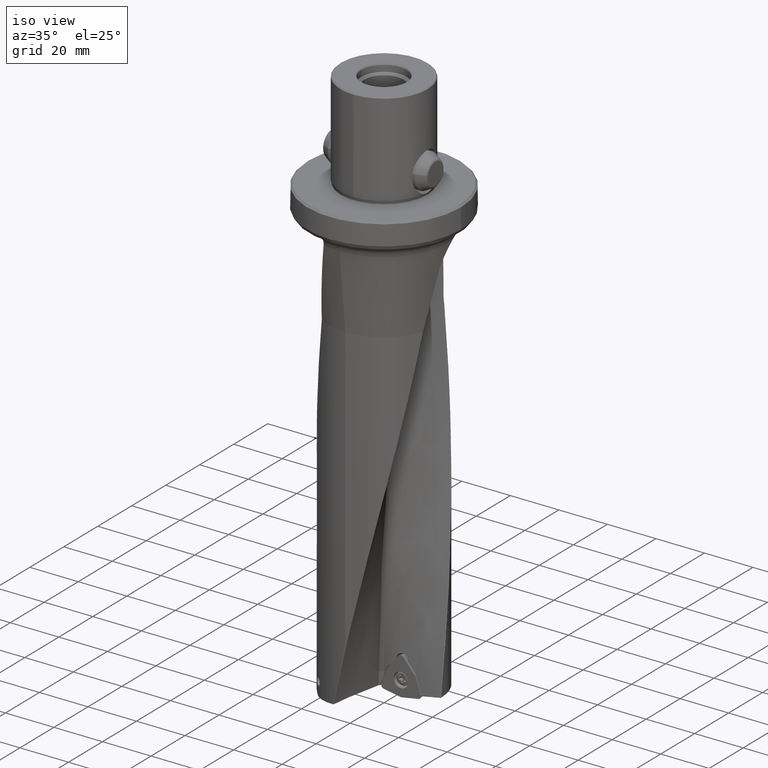
[diagram: clean part render]
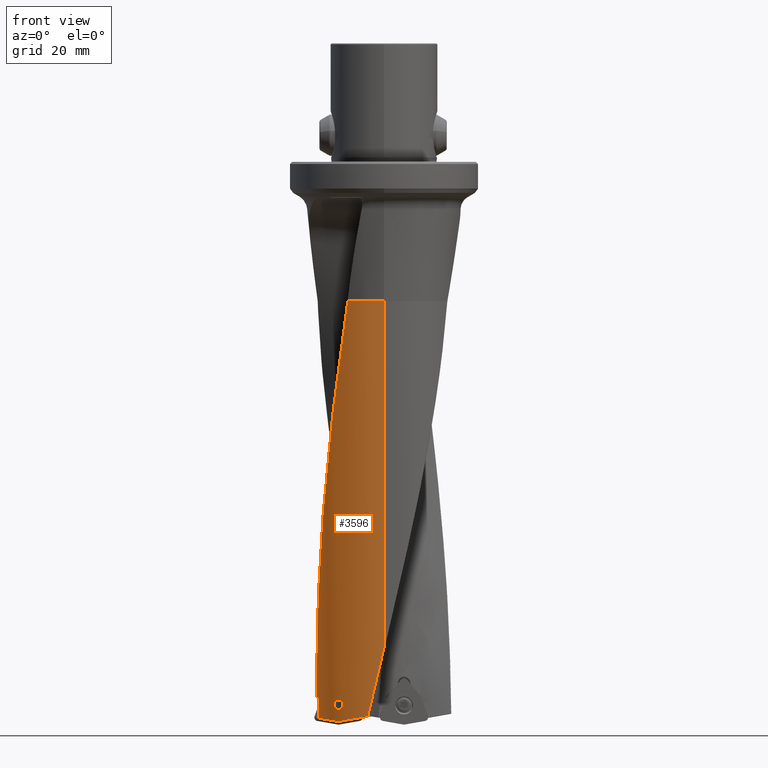
[diagram: tour spotlight — one face highlighted and labeled with its STEP entity id]
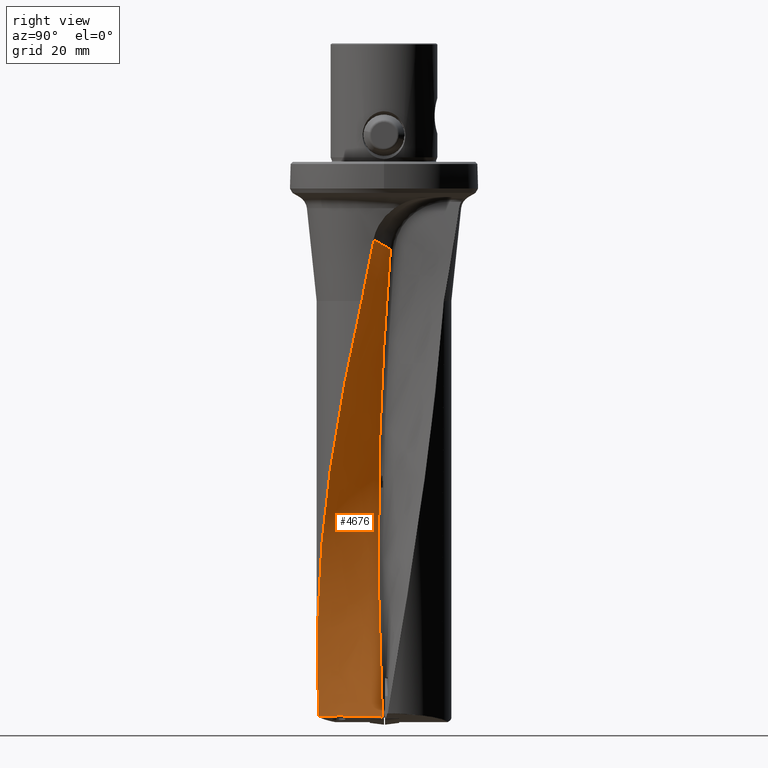
[diagram: tour spotlight — one face highlighted and labeled with its STEP entity id]
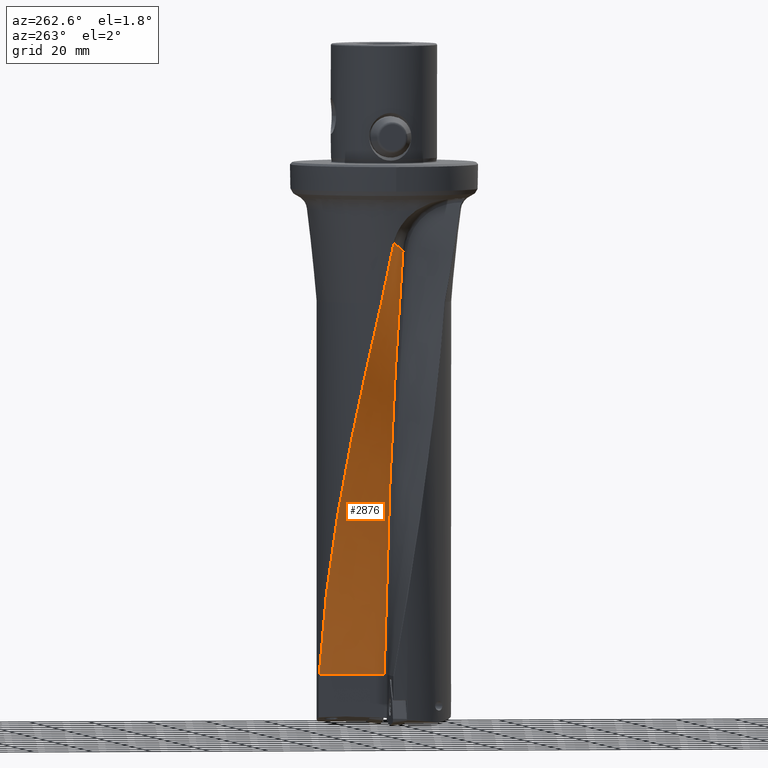
[diagram: tour spotlight — one face highlighted and labeled with its STEP entity id]
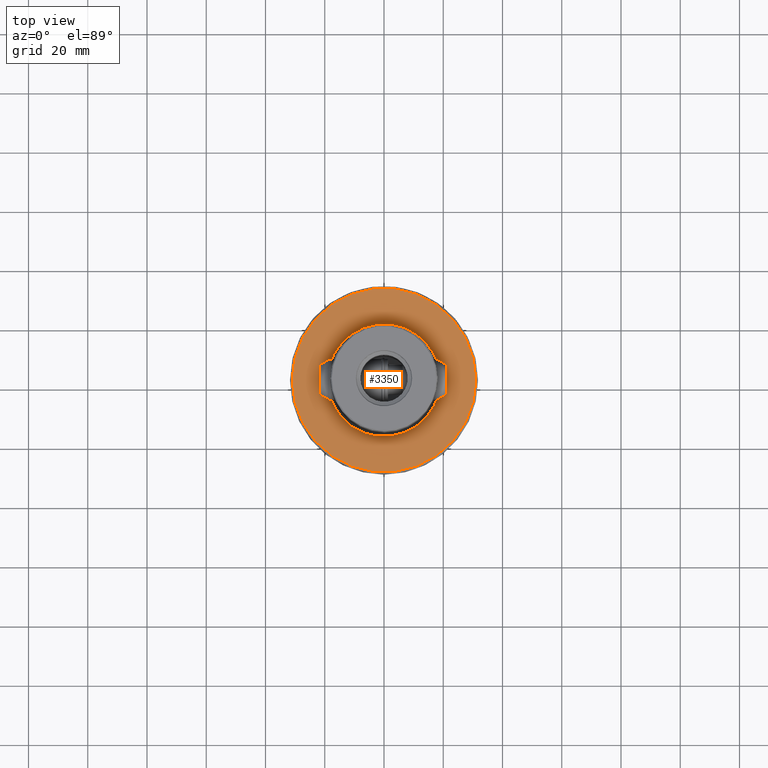
[diagram: tour spotlight — one face highlighted and labeled with its STEP entity id]
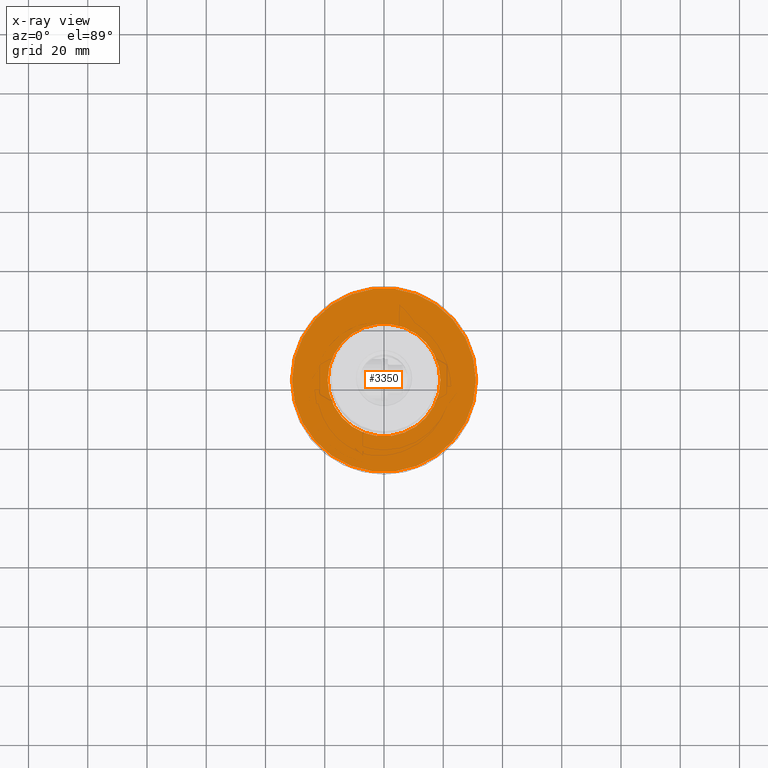
[diagram: x-ray of the same camera — body ghosted, this tour face saturated]
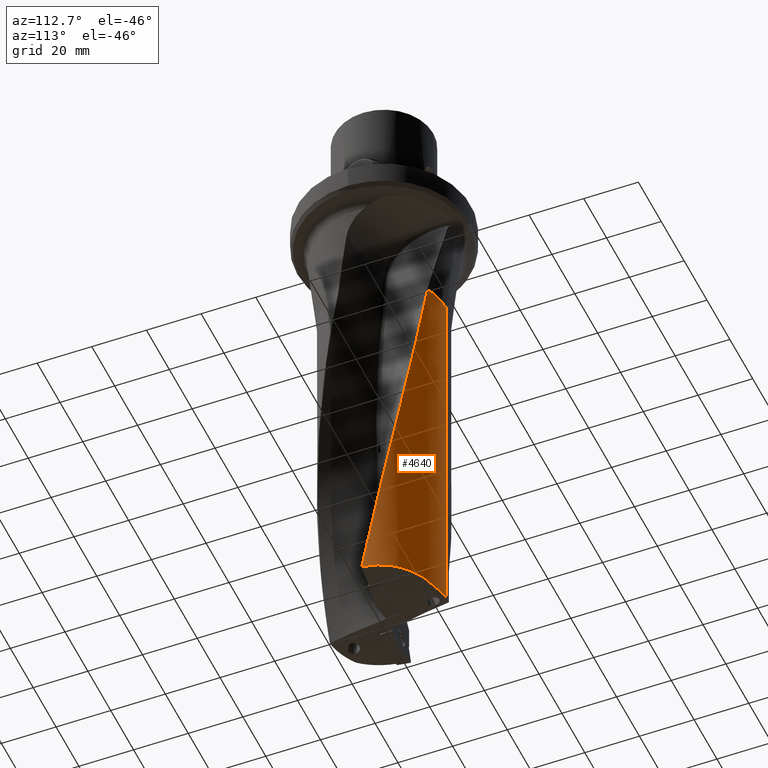
[diagram: tour spotlight — one face highlighted and labeled with its STEP entity id]
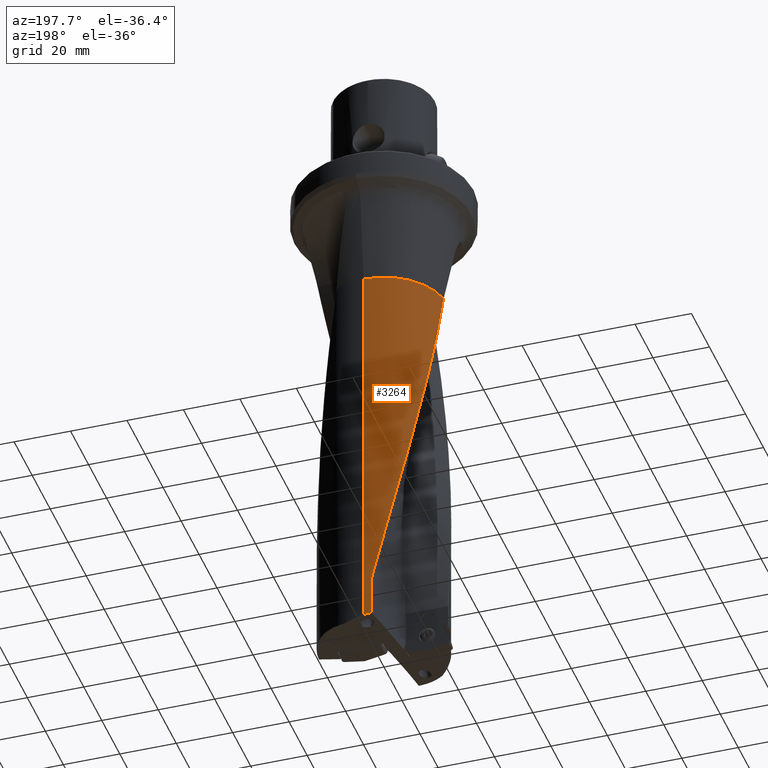
[diagram: tour spotlight — one face highlighted and labeled with its STEP entity id]
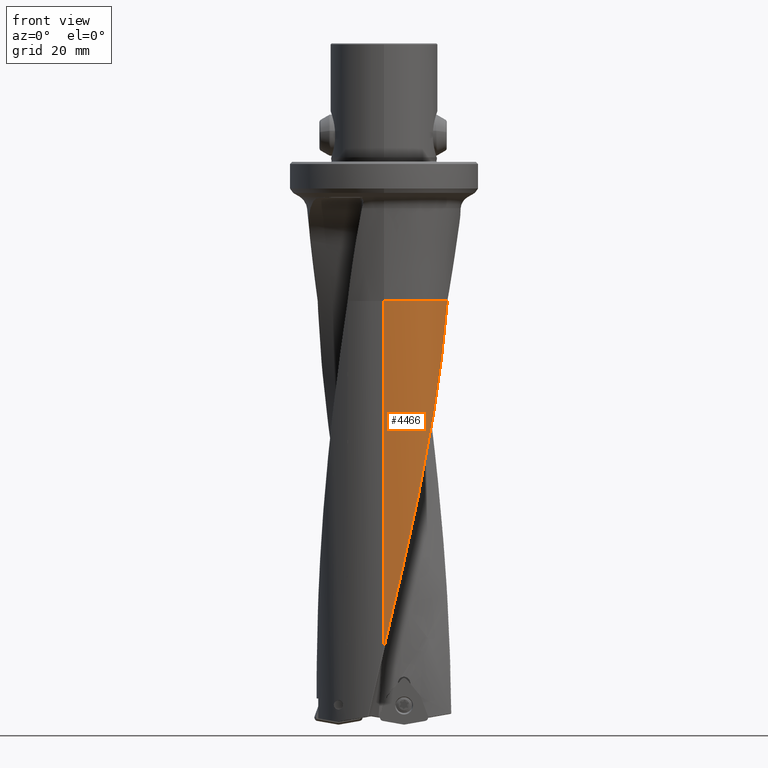
[diagram: tour spotlight — one face highlighted and labeled with its STEP entity id]
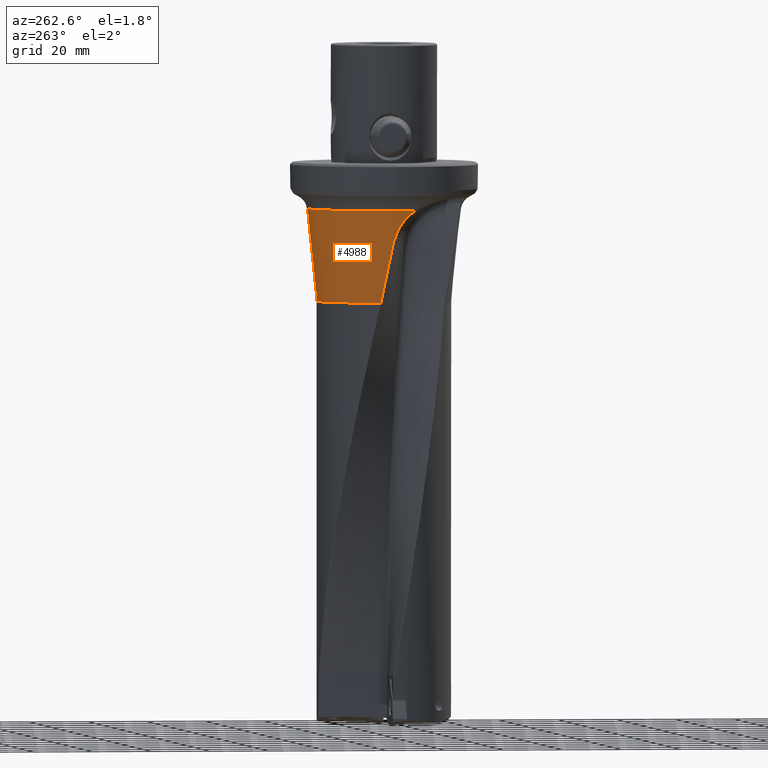
[diagram: tour spotlight — one face highlighted and labeled with its STEP entity id]
A machine part: a face-by-face anatomy tour. The part has 371 B-rep faces; the first image is the clean iso view, then the 8 largest visible faces are spotlighted one at a time (largest first), each with its STEP entity span.

Face 1 — front view, entity #3596. In plain terms, the highlighted cylindrical surface (partial cylindrical patch) has radius 22.7375 mm, axis along (-0, -0, 1).
Definition (entity closure, byte-faithful):
#2164=VERTEX_POINT('NONE',#5868);
#2288=EDGE_CURVE('NONE',#3622,#2578,#6001,.T.);
#2552=EDGE_CURVE('NONE',#4776,#3152,#6293,.T.);
#2578=VERTEX_POINT('',#6323);
#2914=EDGE_CURVE('NONE',#3272,#3554,#6697,.T.);
#2976=EDGE_CURVE('NONE',#5004,#4894,#6763,.T.);
#3010=EDGE_CURVE('',#3460,#2578,#6800,.T.);
#3152=VERTEX_POINT('NONE',#6960);
#3244=EDGE_CURVE('NONE',#4894,#5004,#7067,.F.);
#3272=VERTEX_POINT('NONE',#7102);
#3388=VERTEX_POINT('NONE',#7233);
#3448=EDGE_CURVE('NONE',#3388,#4442,#7297,.F.);
#3460=VERTEX_POINT('',#7311);
#3538=EDGE_CURVE('NONE',#4442,#3622,#7396,.F.);
#3554=VERTEX_POINT('NONE',#7413);
#3596=ADVANCED_FACE('NONE',(#7460,#7461),#7462,.T.);
#3622=VERTEX_POINT('NONE',#7493);
#3776=EDGE_CURVE('NONE',#2164,#5244,#7661,.T.);
#3838=EDGE_CURVE('NONE',#3554,#5244,#7728,.T.);
#3840=EDGE_CURVE('NONE',#3152,#3272,#7730,.T.);
#4124=EDGE_CURVE('NONE',#4776,#3460,#8042,.T.);
#4258=EDGE_CURVE('NONE',#2164,#3388,#8189,.T.);
#4442=VERTEX_POINT('NONE',#8393);
#4776=VERTEX_POINT('NONE',#8765);
#4894=VERTEX_POINT('NONE',#8896);
#5004=VERTEX_POINT('NONE',#9017);
#5244=VERTEX_POINT('NONE',#9277);
#5868=CARTESIAN_POINT('',(-22.1800300908,-5.00401552967277,-181.351998984399));
#6001=B_SPLINE_CURVE_WITH_KNOTS('',3,(#12253,#12254,#12255,#12256,#12257,#12258,#12259,#12260,#12261,#12262,#12263,#12264),.UNSPECIFIED.,.F.,.F.,(4,2,2,2,2,4),(0.0,0.0359493693178462,0.0718987386356924,0.107848107953539,0.125822792612462,0.143797477271385),.UNSPECIFIED.);
#6293=B_SPLINE_CURVE_WITH_KNOTS('',3,(#12988,#12989,#12990,#12991),.UNSPECIFIED.,.F.,.F.,(4,4),(0.0,0.0138851361809554),.UNSPECIFIED.);
#6323=CARTESIAN_POINT('',(2.56406775874555E-015,-22.7367964015384,-163.911202852289));
#6697=LINE('',#19971,#19972);
#6763=B_SPLINE_CURVE_WITH_KNOTS('',3,(#20080,#20081,#20082,#20083,#20084,#20085,#20086,#20087,#20088,#20089,#20090,#20091,#20092,#20093,#20094,#20095,#20096,#20097,#20098,#20099,#20100,#20101,#20102,#20103,#20104,#20105,#20106,#20107,#20108,#20109,#20110,#20111,#20112,#20113,#20114,#20115,#20116,#20117,#20118,#20119,#20120,#20121,#20122),.UNSPECIFIED.,.F.,.F.,(4,2,2,2,2,2,2,2,2,2,2,2,2,2,2,2,3,2,2,2,4),(-7.48285409858956,-6.70126333539583,-6.41421632096146,-6.1271693065271,-5.84012229209274,-5.55307527765837,-5.26602826322401,-4.97898124878965,-4.69193423435528,-4.40488721992092,-3.62329645672719,-2.84170569353345,-2.0045537613854,-1.16740182923734,-0.583700914618673,-0.291850457309335,0.0,0.291850457309335,0.58370091461867,1.16740182923734,2.00455376138539),.UNSPECIFIED.);
#6800=LINE('',#20199,#20200);
#6960=CARTESIAN_POINT('',(-12.2140385985513,-19.1784036708767,-46.9996433359723));
#7067=B_SPLINE_CURVE_WITH_KNOTS('',3,(#24703,#24704,#24705,#24706,#24707,#24708,#24709,#24710,#24711,#24712,#24713,#24714,#24715,#24716,#24717,#24718,#24719,#24720,#24721,#24722,#24723,#24724,#24725,#24726,#24727,#24728,#24729,#24730,#24731,#24732,#24733,#24734,#24735,#24736,#24737,#24738,#24739,#24740,#24741,#24742,#24743,#24744,#24745),.UNSPECIFIED.,.F.,.F.,(4,2,2,2,2,2,2,2,2,2,2,2,2,2,2,2,3,2,2,2,4),(-7.48285409858955,-6.70126333539582,-6.41421632096145,-6.12716930652709,-5.84012229209272,-5.55307527765836,-5.266028263224,-4.97898124878964,-4.69193423435527,-4.40488721992091,-3.62329645672718,-2.84170569353345,-2.00455376138539,-1.16740182923734,-0.583700914618671,-0.291850457309335,0.0,0.291850457309336,0.583700914618671,1.16740182923734,2.0045537613854),.UNSPECIFIED.);
#7102=CARTESIAN_POINT('',(-22.7327634498756,-0.4640820854132,-173.01748086658));
#7233=CARTESIAN_POINT('',(-22.1800300908,-5.00401552967277,-187.752970169658));
#7297=(B_SPLINE_CURVE(3,(#27314,#27315,#27316,#27317),.UNSPECIFIED.,.F.,.F.)B_SPLINE_CURVE_WITH_KNOTS((4,4),(-0.820857559567086,-0.221894069749572),.UNSPECIFIED.)RATIONAL_B_SPLINE_CURVE((1.0,0.970326343782866,0.970326343782866,1.0))BOUNDED_CURVE()REPRESENTATION_ITEM('')GEOMETRIC_REPRESENTATION_ITEM()CURVE());
#7311=CARTESIAN_POINT('',(2.79675332889294E-015,-22.7375,-46.9999999999999));
#7396=B_SPLINE_CURVE_WITH_KNOTS('',3,(#28535,#28536,#28537,#28538,#28539,#28540,#28541),.UNSPECIFIED.,.F.,.F.,(4,3,4),(0.0,0.661543979869012,1.0),.UNSPECIFIED.);
#7413=CARTESIAN_POINT('',(-22.7327634498756,-0.4640820854132,-180.951998028182));
#7460=FACE_BOUND('',#28668,.T.);
#7461=FACE_OUTER_BOUND('',#28669,.T.);
#7462=CYLINDRICAL_SURFACE('',#28670,22.7375);
#7493=CARTESIAN_POINT('',(-5.47994279701145,-22.067263835634,-187.170002679321));
#7661=B_SPLINE_CURVE_WITH_KNOTS('',3,(#32033,#32034,#32035,#32036,#32037,#32038,#32039),.UNSPECIFIED.,.F.,.F.,(4,3,4),(0.0,0.585292142046499,1.0),.UNSPECIFIED.);
#7728=(B_SPLINE_CURVE(3,(#32740,#32741,#32742,#32743),.UNSPECIFIED.,.F.,.F.)B_SPLINE_CURVE_WITH_KNOTS((4,4),(0.0204118444464974,0.203735986096909),.UNSPECIFIED.)RATIONAL_B_SPLINE_CURVE((1.0,0.997201315278119,0.997201315278119,1.0))BOUNDED_CURVE()REPRESENTATION_ITEM('')GEOMETRIC_REPRESENTATION_ITEM()CURVE());
#7730=B_SPLINE_CURVE_WITH_KNOTS('',3,(#32752,#32753,#32754,#32755,#32756,#32757,#32758,#32759,#32760,#32761,#32762,#32763,#32764),.UNSPECIFIED.,.F.,.F.,(4,3,3,3,4),(0.0,0.229142401882846,0.485552091234383,0.734935348579478,1.0),.UNSPECIFIED.);
#8042=CIRCLE('',#34277,22.7375);
#8189=LINE('',#35700,#35701);
#8393=CARTESIAN_POINT('',(-15.4977425610816,-16.6377246569488,-188.920873663097));
#8765=CARTESIAN_POINT('',(-12.2107626585268,-19.180489606554,-47.0));
#8896=CARTESIAN_POINT('',(-16.9114237700051,-15.1986069204156,-183.301999999997));
#9017=CARTESIAN_POINT('',(-13.8114237699998,-18.0620729623009,-183.302));
#9277=CARTESIAN_POINT('',(-22.2672319753323,-4.60046589018303,-180.951998028182));
#12253=CARTESIAN_POINT('',(-5.47994279701145,-22.067263835634,-187.170002679321));
#12254=CARTESIAN_POINT('',(-2.77794818413017,-22.7382476071931,-175.47158500138));
#12255=CARTESIAN_POINT('',(0.037686069738801,-22.9058520389631,-163.813761687935));
#12256=CARTESIAN_POINT('',(5.54038865266312,-22.2257411900743,-140.497402752527));
#12257=CARTESIAN_POINT('',(8.2301360076307,-21.3775752102791,-128.839498429972));
#12258=CARTESIAN_POINT('',(13.1421272614036,-18.762205403958,-105.441988385033));
#12259=CARTESIAN_POINT('',(15.3500951270229,-17.0031235715669,-93.7693162221322));
#12260=CARTESIAN_POINT('',(18.0847647554594,-13.851701026475,-76.2376073797257));
#12261=CARTESIAN_POINT('',(18.9005556613384,-12.716107535368,-70.3871340665185));
#12262=CARTESIAN_POINT('',(20.3101846306504,-10.3163363374449,-58.694000977369));
#12263=CARTESIAN_POINT('',(20.9047097149965,-9.0514261946122,-52.8488995933758));
#12264=CARTESIAN_POINT('',(21.3790836310532,-7.74136224100336,-47.0));
#12988=CARTESIAN_POINT('',(-12.2107626585268,-19.180489606554,-47.0));
#12989=CARTESIAN_POINT('',(-12.2118909966215,-19.1797712792873,-47.0000055908528));
#12990=CARTESIAN_POINT('',(-12.2129808864647,-19.1790772898324,-46.9998793661388));
#12991=CARTESIAN_POINT('',(-12.2140385985513,-19.1784036708767,-46.9996433359723));
#19971=CARTESIAN_POINT('',(-22.7327634498756,-0.4640820854132,19.1374973745012));
#19972=VECTOR('',#47427,1.0);
#20080=CARTESIAN_POINT('',(-14.7565653482014,-17.2984879505193,-184.729111169313));
#20081=CARTESIAN_POINT('',(-14.5552006334907,-17.4702631665729,-184.643765955865));
#20082=CARTESIAN_POINT('',(-14.3640328194448,-17.6268903370767,-184.510484263799));
#20083=CARTESIAN_POINT('',(-14.1538015166738,-17.7951971502306,-184.277325461548));
#20084=CARTESIAN_POINT('',(-14.0990682478282,-17.8385569376733,-184.206169527917));
#20085=CARTESIAN_POINT('',(-14.0004535367679,-17.9160581557242,-184.049545332776));
#20086=CARTESIAN_POINT('',(-13.9565851757967,-17.9502001452917,-183.96406911193));
#20087=CARTESIAN_POINT('',(-13.8850098587257,-18.0056229009641,-183.78377703143));
#20088=CARTESIAN_POINT('',(-13.8572395964524,-18.0269618837078,-183.688762443731));
#20089=CARTESIAN_POINT('',(-13.820440611016,-18.0551894287224,-183.495716597133));
#20090=CARTESIAN_POINT('',(-13.81142377,-18.0620729623008,-183.397682338145));
#20091=CARTESIAN_POINT('',(-13.81142377,-18.0620729623008,-183.206317661855));
#20092=CARTESIAN_POINT('',(-13.820440611016,-18.0551894287224,-183.108283402867));
#20093=CARTESIAN_POINT('',(-13.8572395964524,-18.0269618837078,-182.915237556269));
#20094=CARTESIAN_POINT('',(-13.8850098587257,-18.0056229009641,-182.82022296857));
#20095=CARTESIAN_POINT('',(-13.9565851757967,-17.9502001452917,-182.63993088807));
#20096=CARTESIAN_POINT('',(-14.0004535367679,-17.9160581557243,-182.554454667224));
#20097=CARTESIAN_POINT('',(-14.0990682478282,-17.8385569376733,-182.397830472083));
#20098=CARTESIAN_POINT('',(-14.1538015166738,-17.7951971502306,-182.326674538452));
#20099=CARTESIAN_POINT('',(-14.3640328194448,-17.6268903370767,-182.093515736201));
#20100=CARTESIAN_POINT('',(-14.5552006334907,-17.4702631665729,-181.960234044135));
#20101=CARTESIAN_POINT('',(-14.9579300629121,-17.1267127344657,-181.789543617238));
#20102=CARTESIAN_POINT('',(-15.1693427277587,-16.9396819176528,-181.752));
#20103=CARTESIAN_POINT('',(-15.5671593329233,-16.5751418037772,-181.752));
#20104=CARTESIAN_POINT('',(-15.7856087133277,-16.3673414700475,-181.79475989516));
#20105=CARTESIAN_POINT('',(-16.1913314200565,-15.9660920733603,-181.974235383994));
#20106=CARTESIAN_POINT('',(-16.3788278179557,-15.7726341571461,-182.110426455863));
#20107=CARTESIAN_POINT('',(-16.6343856366326,-15.5020803844477,-182.403350512895));
#20108=CARTESIAN_POINT('',(-16.7339357638085,-15.3941516167922,-182.557382078274));
#20109=CARTESIAN_POINT('',(-16.837995426964,-15.2800021968923,-182.821196108034));
#20110=CARTESIAN_POINT('',(-16.8653952904549,-15.2496917838109,-182.914573461206));
#20111=CARTESIAN_POINT('',(-16.9021191682986,-15.2089784477977,-183.106328473415));
#20112=CARTESIAN_POINT('',(-16.91142377,-15.1986069204213,-183.20471651423));
#20113=CARTESIAN_POINT('',(-16.91142377,-15.1986069204213,-183.302));
#20114=CARTESIAN_POINT('',(-16.91142377,-15.1986069204213,-183.39928348577));
#20115=CARTESIAN_POINT('',(-16.9021191682986,-15.2089784477977,-183.497671526585));
#20116=CARTESIAN_POINT('',(-16.8653952904549,-15.2496917838109,-183.689426538794));
#20117=CARTESIAN_POINT('',(-16.837995426964,-15.2800021968923,-183.782803891966));
#20118=CARTESIAN_POINT('',(-16.7339357638085,-15.3941516167922,-184.046617921726));
#20119=CARTESIAN_POINT('',(-16.6343856366326,-15.5020803844477,-184.200649487105));
#20120=CARTESIAN_POINT('',(-16.3788278179557,-15.7726341571461,-184.493573544137));
#20121=CARTESIAN_POINT('',(-16.1913314200565,-15.9660920733603,-184.629764616006));
#20122=CARTESIAN_POINT('',(-15.9884700666921,-16.1667167717039,-184.719502360423));
#20199=CARTESIAN_POINT('',(2.79675332889294E-015,-22.7375,-117.960357177947));
#20200=VECTOR('',#47531,1.0);
#24703=CARTESIAN_POINT('',(-14.7565653482014,-17.2984879505193,-181.874888830687));
#24704=CARTESIAN_POINT('',(-14.5552006334907,-17.4702631665729,-181.960234044135));
#24705=CARTESIAN_POINT('',(-14.3640328194448,-17.6268903370767,-182.093515736201));
#24706=CARTESIAN_POINT('',(-14.1538015166738,-17.7951971502306,-182.326674538452));
#24707=CARTESIAN_POINT('',(-14.0990682478282,-17.8385569376733,-182.397830472083));
#24708=CARTESIAN_POINT('',(-14.0004535367679,-17.9160581557243,-182.554454667224));
#24709=CARTESIAN_POINT('',(-13.9565851757967,-17.9502001452917,-182.63993088807));
#24710=CARTESIAN_POINT('',(-13.8850098587257,-18.0056229009641,-182.82022296857));
#24711=CARTESIAN_POINT('',(-13.8572395964524,-18.0269618837078,-182.915237556269));
#24712=CARTESIAN_POINT('',(-13.820440611016,-18.0551894287224,-183.108283402867));
#24713=CARTESIAN_POINT('',(-13.81142377,-18.0620729623008,-183.206317661855));
#24714=CARTESIAN_POINT('',(-13.81142377,-18.0620729623008,-183.397682338145));
#24715=CARTESIAN_POINT('',(-13.820440611016,-18.0551894287224,-183.495716597133));
#24716=CARTESIAN_POINT('',(-13.8572395964524,-18.0269618837078,-183.688762443731));
#24717=CARTESIAN_POINT('',(-13.8850098587257,-18.0056229009641,-183.78377703143));
#24718=CARTESIAN_POINT('',(-13.9565851757967,-17.9502001452917,-183.96406911193));
#24719=CARTESIAN_POINT('',(-14.0004535367679,-17.9160581557242,-184.049545332776));
#24720=CARTESIAN_POINT('',(-14.0990682478282,-17.8385569376733,-184.206169527917));
#24721=CARTESIAN_POINT('',(-14.1538015166738,-17.7951971502306,-184.277325461548));
#24722=CARTESIAN_POINT('',(-14.3640328194448,-17.6268903370767,-184.510484263799));
#24723=CARTESIAN_POINT('',(-14.5552006334907,-17.4702631665729,-184.643765955865));
#24724=CARTESIAN_POINT('',(-14.9579300629121,-17.1267127344657,-184.814456382762));
#24725=CARTESIAN_POINT('',(-15.1693427277587,-16.9396819176528,-184.852));
#24726=CARTESIAN_POINT('',(-15.5671593329233,-16.5751418037772,-184.852));
#24727=CARTESIAN_POINT('',(-15.7856087133277,-16.3673414700475,-184.80924010484));
#24728=CARTESIAN_POINT('',(-16.1913314200565,-15.9660920733603,-184.629764616006));
#24729=CARTESIAN_POINT('',(-16.3788278179557,-15.7726341571461,-184.493573544137));
#24730=CARTESIAN_POINT('',(-16.6343856366326,-15.5020803844477,-184.200649487105));
#24731=CARTESIAN_POINT('',(-16.7339357638085,-15.3941516167922,-184.046617921726));
#24732=CARTESIAN_POINT('',(-16.837995426964,-15.2800021968923,-183.782803891966));
#24733=CARTESIAN_POINT('',(-16.8653952904549,-15.2496917838109,-183.689426538794));
#24734=CARTESIAN_POINT('',(-16.9021191682986,-15.2089784477977,-183.497671526585));
#24735=CARTESIAN_POINT('',(-16.91142377,-15.1986069204213,-183.39928348577));
#24736=CARTESIAN_POINT('',(-16.91142377,-15.1986069204213,-183.302));
#24737=CARTESIAN_POINT('',(-16.91142377,-15.1986069204213,-183.20471651423));
#24738=CARTESIAN_POINT('',(-16.9021191682986,-15.2089784477977,-183.106328473415));
#24739=CARTESIAN_POINT('',(-16.8653952904549,-15.2496917838109,-182.914573461206));
#24740=CARTESIAN_POINT('',(-16.837995426964,-15.2800021968923,-182.821196108034));
#24741=CARTESIAN_POINT('',(-16.7339357638085,-15.3941516167922,-182.557382078274));
#24742=CARTESIAN_POINT('',(-16.6343856366326,-15.5020803844477,-182.403350512895));
#24743=CARTESIAN_POINT('',(-16.3788278179557,-15.7726341571461,-182.110426455863));
#24744=CARTESIAN_POINT('',(-16.1913314200565,-15.9660920733603,-181.974235383994));
#24745=CARTESIAN_POINT('',(-15.9884700666921,-16.1667167717039,-181.884497639577));
#27314=CARTESIAN_POINT('',(-15.4977425610816,-16.6377246569488,-188.920873663097));
#27315=CARTESIAN_POINT('',(-18.8701788759023,-13.4963606250043,-188.331452729627));
#27316=CARTESIAN_POINT('',(-21.1657253081357,-9.49986700481965,-187.930246303589));
#27317=CARTESIAN_POINT('',(-22.1800300908,-5.00401552967277,-187.752970169658));
#28535=CARTESIAN_POINT('',(-5.47994279701145,-22.067263835634,-187.170002679321));
#28536=CARTESIAN_POINT('',(-7.93747653554014,-21.4569868022342,-187.599520638715));
#28537=CARTESIAN_POINT('',(-10.29639231879,-20.431338493548,-188.011820068894));
#28538=CARTESIAN_POINT('',(-12.4252110435066,-19.0422697379887,-188.38385197063));
#28539=CARTESIAN_POINT('',(-13.5143472688723,-18.3316009132372,-188.574189182751));
#28540=CARTESIAN_POINT('',(-14.5440133568053,-17.5261063308627,-188.754180496147));
#28541=CARTESIAN_POINT('',(-15.4977425610816,-16.6377246569488,-188.920873663097));
#28668=EDGE_LOOP('',(#48338,#48339));
#28669=EDGE_LOOP('',(#48340,#48341,#48342,#48343,#48344,#48345,#48346,#48347,#48348,#48349,#48350));
#28670=AXIS2_PLACEMENT_3D('',#48351,#48352,#48353);
#32033=CARTESIAN_POINT('',(-22.1800300908,-5.00401552967276,-181.351998984399));
#32034=CARTESIAN_POINT('',(-22.1800300964415,-5.00401550466719,-181.227676065923));
#32035=CARTESIAN_POINT('',(-22.1943020261652,-4.94136185261289,-181.105130101946));
#32036=CARTESIAN_POINT('',(-22.2158050895235,-4.84271726144551,-181.032198364284));
#32037=CARTESIAN_POINT('',(-22.2310410523942,-4.77282278625457,-180.980522692376));
#32038=CARTESIAN_POINT('',(-22.2494090137644,-4.68673280948968,-180.951998809198));
#32039=CARTESIAN_POINT('',(-22.2672319753323,-4.60046589018303,-180.951998028182));
#32740=CARTESIAN_POINT('',(-22.7327634498756,-0.464082085413199,-180.951998028182));
#32741=CARTESIAN_POINT('',(-22.7043645155013,-1.85518568033989,-180.951998028182));
#32742=CARTESIAN_POINT('',(-22.548751846521,-3.23784992322187,-180.951998028182));
#32743=CARTESIAN_POINT('',(-22.2672319753323,-4.60046589018303,-180.951998028182));
#32752=CARTESIAN_POINT('',(-12.2140385985513,-19.1784036708767,-46.9996433359723));
#32753=CARTESIAN_POINT('',(-13.6482968324252,-18.2649759565865,-56.6262733145312));
#32754=CARTESIAN_POINT('',(-14.9814477686104,-17.1888757183092,-66.2525443961546));
#32755=CARTESIAN_POINT('',(-16.1794571735226,-15.9755773548297,-75.878343066062));
#32756=CARTESIAN_POINT('',(-17.5200262555855,-14.6178999720572,-86.6495841215402));
#32757=CARTESIAN_POINT('',(-18.6904637628148,-13.0887531176884,-97.4203741882169));
#32758=CARTESIAN_POINT('',(-19.6520512814379,-11.436379964033,-108.190968383446));
#32759=CARTESIAN_POINT('',(-20.5872882774464,-9.82928703220843,-118.666414419598));
#32760=CARTESIAN_POINT('',(-21.3251582629525,-8.10539777958774,-129.141536019474));
#32761=CARTESIAN_POINT('',(-21.8423811451487,-6.31698441980457,-139.616528815818));
#32762=CARTESIAN_POINT('',(-22.392127364825,-4.41611437402298,-150.750196503674));
#32763=CARTESIAN_POINT('',(-22.6923758688941,-2.44244184896086,-161.883787224106));
#32764=CARTESIAN_POINT('',(-22.7327634498756,-0.464082085413199,-173.01748086658));
#34277=AXIS2_PLACEMENT_3D('',#48996,#48997,#48998);
#35700=CARTESIAN_POINT('',(-22.1800300908,-5.00401552967277,19.1374973745012));
#35701=VECTOR('',#49154,1.0);
#47427=DIRECTION('',(0.0,0.0,-1.0));
#47531=DIRECTION('',(0.0,0.0,-1.0));
#48338=ORIENTED_EDGE('',*,*,#3244,.F.);
#48339=ORIENTED_EDGE('',*,*,#2976,.F.);
#48340=ORIENTED_EDGE('',*,*,#3010,.F.);
#48341=ORIENTED_EDGE('',*,*,#4124,.F.);
#48342=ORIENTED_EDGE('',*,*,#2552,.T.);
#48343=ORIENTED_EDGE('',*,*,#3840,.T.);
#48344=ORIENTED_EDGE('',*,*,#2914,.T.);
#48345=ORIENTED_EDGE('',*,*,#3838,.T.);
#48346=ORIENTED_EDGE('',*,*,#3776,.F.);
#48347=ORIENTED_EDGE('',*,*,#4258,.T.);
#48348=ORIENTED_EDGE('',*,*,#3448,.T.);
#48349=ORIENTED_EDGE('',*,*,#3538,.T.);
#48350=ORIENTED_EDGE('',*,*,#2288,.T.);
#48351=CARTESIAN_POINT('',(0.0,0.0,19.1374973745012));
#48352=DIRECTION('',(-0.0,-0.0,1.0));
#48353=DIRECTION('',(0.0,1.0,0.0));
#48996=CARTESIAN_POINT('',(0.0,0.0,-46.9999999999999));
#48997=DIRECTION('',(0.0,-0.0,1.0));
#48998=DIRECTION('',(0.0,1.0,0.0));
#49154=DIRECTION('',(0.0,0.0,-1.0));

Face 2 — right view, entity #4676. In plain terms, the highlighted face is a freeform B-spline surface patch.
Definition (entity closure, byte-faithful):
#2634=EDGE_CURVE('NONE',#5198,#3474,#6385,.T.);
#3474=VERTEX_POINT('NONE',#7327);
#3562=VERTEX_POINT('NONE',#7422);
#4004=VERTEX_POINT('NONE',#7911);
#4392=VERTEX_POINT('NONE',#8339);
#4458=VERTEX_POINT('NONE',#8411);
#4676=ADVANCED_FACE('NONE',(#8657),#8658,.T.);
#5044=EDGE_CURVE('NONE',#4392,#3562,#9057,.T.);
#5162=EDGE_CURVE('NONE',#4458,#4392,#9185,.F.);
#5198=VERTEX_POINT('NONE',#9225);
#5220=EDGE_CURVE('NONE',#3474,#4458,#9252,.T.);
#5394=EDGE_CURVE('NONE',#3562,#4004,#9446,.T.);
#5502=EDGE_CURVE('NONE',#4004,#5198,#9565,.F.);
#6385=B_SPLINE_CURVE_WITH_KNOTS('',3,(#15321,#15322,#15323,#15324,#15325,#15326,#15327),.UNSPECIFIED.,.F.,.F.,(4,3,4),(0.0,0.0667398401604001,1.0),.UNSPECIFIED.);
#7327=CARTESIAN_POINT('',(21.2827697389122,-7.49870988162051,-47.0350629336566));
#7422=CARTESIAN_POINT('',(-1.82737846266413,-0.539494587368708,-187.380513090809));
#7911=CARTESIAN_POINT('',(5.79212391075609,2.16929306825031,-29.4993995001451));
#8339=CARTESIAN_POINT('',(-4.10607121046642,-15.053667548161,-187.004743773591));
#8411=CARTESIAN_POINT('',(-5.2394934689398,-21.9039278161415,-187.215764958455));
#8657=FACE_OUTER_BOUND('',#39423,.T.);
#8658=B_SPLINE_SURFACE_WITH_KNOTS('',1,3,((#39424,#39425,#39426,#39427,#39428,#39429,#39430,#39431,#39432,#39433),(#39434,#39435,#39436,#39437,#39438,#39439,#39440,#39441,#39442,#39443)),.UNSPECIFIED.,.F.,.F.,.F.,(2,2),(4,2,2,2,4),(0.350904379592485,0.968864068701502),(0.00914857580246823,0.25,0.5,0.75,0.918932902476814),.UNSPECIFIED.);
#9057=B_SPLINE_CURVE_WITH_KNOTS('',3,(#42072,#42073,#42074,#42075),.UNSPECIFIED.,.F.,.F.,(4,4),(0.0,0.0146966958690556),.UNSPECIFIED.);
#9185=B_SPLINE_CURVE_WITH_KNOTS('',3,(#42267,#42268,#42269,#42270,#42271,#42272,#42273),.UNSPECIFIED.,.F.,.F.,(4,3,4),(0.0,0.66528027837562,1.0),.UNSPECIFIED.);
#9225=CARTESIAN_POINT('',(24.5104213370644,-3.39848360296712,-26.330737028402));
#9252=B_SPLINE_CURVE_WITH_KNOTS('',3,(#42364,#42365,#42366,#42367,#42368,#42369,#42370,#42371,#42372,#42373,#42374,#42375),.UNSPECIFIED.,.F.,.F.,(4,2,2,2,2,4),(0.0,0.018021442633577,0.0360428852671539,0.0720857705343078,0.108128655801462,0.144171541068615),.UNSPECIFIED.);
#9446=B_SPLINE_CURVE_WITH_KNOTS('',3,(#45276,#45277,#45278,#45279,#45280,#45281,#45282,#45283,#45284,#45285,#45286,#45287,#45288,#45289),.UNSPECIFIED.,.F.,.F.,(4,2,2,2,2,2,4),(0.00022819924440709,0.0397928693359483,0.0793575394274895,0.0991398744732602,0.118922209519031,0.138704544564801,0.158486879610572),.UNSPECIFIED.);
#9565=B_SPLINE_CURVE_WITH_KNOTS('',3,(#46046,#46047,#46048,#46049,#46050,#46051,#46052,#46053,#46054,#46055),.UNSPECIFIED.,.F.,.F.,(4,3,3,4),(0.0,0.666103581166435,0.832943126730112,1.0),.UNSPECIFIED.);
#15321=CARTESIAN_POINT('',(24.5104213370644,-3.39848360296712,-26.330737028402));
#15322=CARTESIAN_POINT('',(24.4474374937294,-3.50038541128174,-26.790456665704));
#15323=CARTESIAN_POINT('',(24.3838030573028,-3.6016140861157,-27.2502369252406));
#15324=CARTESIAN_POINT('',(24.3195303850922,-3.70216105488009,-27.7100768855288));
#15325=CARTESIAN_POINT('',(23.420770001543,-5.10816502364791,-34.140273808503));
#15326=CARTESIAN_POINT('',(22.3971730869455,-6.38045489300344,-40.5821885053297));
#15327=CARTESIAN_POINT('',(21.2827697186459,-7.49870992002203,-47.0350629235018));
#39423=EDGE_LOOP('',(#49684,#49685,#49686,#49687,#49688,#49689));
#39424=CARTESIAN_POINT('',(-5.27667008211743,-21.8912423041463,-187.38050704879));
#39425=CARTESIAN_POINT('',(-2.07065419706908,-22.9882985361857,-173.168569530268));
#39426=CARTESIAN_POINT('',(1.42783388858638,-23.3853747575143,-158.956839703908));
#39427=CARTESIAN_POINT('',(8.5085460229192,-22.6093946798964,-129.993333333237));
#39428=CARTESIAN_POINT('',(12.0841658781404,-21.3756523482324,-115.241666666718));
#39429=CARTESIAN_POINT('',(18.4453273102315,-17.3793510349838,-85.738333333282));
#39430=CARTESIAN_POINT('',(21.2263461750617,-14.6183644272752,-70.9866666668276));
#39431=CARTESIAN_POINT('',(24.7068801880411,-9.09367919622021,-46.2668325344093));
#39432=CARTESIAN_POINT('',(25.7873262461681,-6.62280931082529,-36.2989297936659));
#39433=CARTESIAN_POINT('',(26.488077743791,-4.01430760313677,-26.3307551290771));
#39434=CARTESIAN_POINT('',(-1.82737846272806,-0.539494587286191,-187.380513092579));
#39435=CARTESIAN_POINT('',(-1.31405515868679,-1.20200385828629,-173.168624582451));
#39436=CARTESIAN_POINT('',(-0.590533115706619,-1.67911519166948,-158.956839703908));
#39437=CARTESIAN_POINT('',(1.06319701743606,-2.10626805802093,-129.993333333237));
#39438=CARTESIAN_POINT('',(1.99768016644629,-2.03465369057862,-115.241666666718));
#39439=CARTESIAN_POINT('',(3.72051488178318,-1.28614370910864,-85.738333333282));
#39440=CARTESIAN_POINT('',(4.50616871939864,-0.609542601785682,-70.9866666668276));
#39441=CARTESIAN_POINT('',(5.43759724815431,0.91384851613205,-46.2668325344094));
#39442=CARTESIAN_POINT('',(5.70720076735241,1.63361866776979,-36.2987354939409));
#39443=CARTESIAN_POINT('',(5.8384773119574,2.4157878908257,-26.3305661133001));
#42072=CARTESIAN_POINT('',(-4.10607120721704,-15.0536675385546,-187.004743774145));
#42073=CARTESIAN_POINT('',(-3.36217903663634,-10.2131264229848,-187.12735663671));
#42074=CARTESIAN_POINT('',(-2.60295014947157,-5.37501960058551,-187.252483827219));
#42075=CARTESIAN_POINT('',(-1.82739399596158,-0.539590741328793,-187.380513090781));
#42267=CARTESIAN_POINT('',(-4.10607120873543,-15.0536675484347,-187.004743773895));
#42268=CARTESIAN_POINT('',(-4.35449737369126,-16.5732774301038,-187.051081711383));
#42269=CARTESIAN_POINT('',(-4.60484825856568,-18.0925634387986,-187.097720261622));
#42270=CARTESIAN_POINT('',(-4.85716309549009,-19.611513734943,-187.144673853441));
#42271=CARTESIAN_POINT('',(-4.98410921838321,-20.3757369305082,-187.168297420371));
#42272=CARTESIAN_POINT('',(-5.11155005370975,-21.1398757437312,-187.191989346271));
#42273=CARTESIAN_POINT('',(-5.23949346893978,-21.9039278161415,-187.215764958455));
#42364=CARTESIAN_POINT('',(21.2827697195599,-7.49870992049557,-47.0350629234684));
#42365=CARTESIAN_POINT('',(20.8216437539078,-8.80203207593714,-52.8840192801497));
#42366=CARTESIAN_POINT('',(20.241034776111,-10.0613231885629,-58.7292647138682));
#42367=CARTESIAN_POINT('',(18.8602122000258,-12.4522826427368,-70.4227016383186));
#42368=CARTESIAN_POINT('',(18.0593274412699,-13.5846768239504,-76.2733033232057));
#42369=CARTESIAN_POINT('',(15.3700794895933,-16.730461763187,-93.805806145516));
#42370=CARTESIAN_POINT('',(13.1933639182012,-18.491035343121,-105.479338071104));
#42371=CARTESIAN_POINT('',(8.34258588858605,-21.1201060396458,-128.878064994745));
#42372=CARTESIAN_POINT('',(5.68239127523311,-21.9805557137285,-140.537378234779));
#42373=CARTESIAN_POINT('',(0.233510249333187,-22.6948374413317,-163.856781456413));
#42374=CARTESIAN_POINT('',(-2.55782270483369,-22.5491149541673,-175.516259467398));
#42375=CARTESIAN_POINT('',(-5.2394934689398,-21.9039278161415,-187.215764958455));
#45276=CARTESIAN_POINT('',(-1.82739399596158,-0.539590741328793,-187.380513090781));
#45277=CARTESIAN_POINT('',(-1.35184005543241,-1.15327781763714,-174.214853977717));
#45278=CARTESIAN_POINT('',(-0.695880864052326,-1.60786632006368,-161.048997235427));
#45279=CARTESIAN_POINT('',(0.781692754183588,-2.06832926679429,-134.729064356517));
#45280=CARTESIAN_POINT('',(1.60345923996373,-2.07031671764982,-121.572221529891));
#45281=CARTESIAN_POINT('',(2.78431640934245,-1.7140436820927,-101.831536299737));
#45282=CARTESIAN_POINT('',(3.1693254817045,-1.53448165348544,-95.2500477238824));
#45283=CARTESIAN_POINT('',(3.8919952345712,-1.06130869711538,-82.0937111907777));
#45284=CARTESIAN_POINT('',(4.22997776750874,-0.768356600103784,-75.5176092294888));
#45285=CARTESIAN_POINT('',(4.83210814887685,-0.0821889609502734,-62.3677432237798));
#45286=CARTESIAN_POINT('',(5.09608743837257,0.311599495669026,-55.7940030314337));
#45287=CARTESIAN_POINT('',(5.52406336619208,1.18390218165495,-42.6469413271695));
#45288=CARTESIAN_POINT('',(5.68867663771834,1.6615525169326,-36.0735988616932));
#45289=CARTESIAN_POINT('',(5.79460937902447,2.16844175157939,-29.4993995225504));
#46046=CARTESIAN_POINT('',(24.5104213370644,-3.39848360296712,-26.330737028402));
#46047=CARTESIAN_POINT('',(20.3177281880688,-2.27011416052054,-27.0010789952167));
#46048=CARTESIAN_POINT('',(16.1476010956599,-1.0743754100221,-27.699410484144));
#46049=CARTESIAN_POINT('',(12.0036305999162,0.197950283396533,-28.4138428187819));
#46050=CARTESIAN_POINT('',(10.9656866916603,0.516630810721175,-28.5927873094245));
#46051=CARTESIAN_POINT('',(9.92939179076246,0.84008931454985,-28.772697160722));
#46052=CARTESIAN_POINT('',(8.89480168099575,1.16839127897045,-28.9536091348747));
#46053=CARTESIAN_POINT('',(7.85886389856147,1.4971208944772,-29.1347567676912));
#46054=CARTESIAN_POINT('',(6.82464315854889,1.83071017309626,-29.3169192836243));
#46055=CARTESIAN_POINT('',(5.79212391075608,2.1692930682503,-29.4993995001451));
#49684=ORIENTED_EDGE('',*,*,#5502,.T.);
#49685=ORIENTED_EDGE('',*,*,#2634,.T.);
#49686=ORIENTED_EDGE('',*,*,#5220,.T.);
#49687=ORIENTED_EDGE('',*,*,#5162,.T.);
#49688=ORIENTED_EDGE('',*,*,#5044,.T.);
#49689=ORIENTED_EDGE('',*,*,#5394,.T.);

Face 3 — auxiliary view, entity #2876. In plain terms, the highlighted face is a freeform B-spline surface patch.
Definition (entity closure, byte-faithful):
#2006=EDGE_CURVE('NONE',#4908,#3890,#5693,.T.);
#2026=EDGE_CURVE('NONE',#2246,#4230,#5714,.F.);
#2246=VERTEX_POINT('NONE',#5955);
#2450=VERTEX_POINT('NONE',#6175);
#2540=EDGE_CURVE('NONE',#3890,#2450,#6279,.F.);
#2616=EDGE_CURVE('NONE',#2450,#5060,#6365,.T.);
#2876=ADVANCED_FACE('NONE',(#6657),#6658,.T.);
#3890=VERTEX_POINT('NONE',#7786);
#4156=EDGE_CURVE('NONE',#5060,#2246,#8076,.F.);
#4230=VERTEX_POINT('NONE',#8159);
#4496=EDGE_CURVE('NONE',#4230,#4908,#8455,.F.);
#4908=VERTEX_POINT('NONE',#8911);
#5060=VERTEX_POINT('NONE',#9074);
#5693=B_SPLINE_CURVE_WITH_KNOTS('',1,(#10413,#10414),.UNSPECIFIED.,.F.,.F.,(2,2),(0.342376954357018,0.968833389181615),.UNSPECIFIED.);
#5714=B_SPLINE_CURVE_WITH_KNOTS('',3,(#10459,#10460,#10461,#10462,#10463,#10464,#10465),.UNSPECIFIED.,.F.,.F.,(4,3,4),(0.0,0.0555253968814705,1.0),.UNSPECIFIED.);
#5955=CARTESIAN_POINT('',(-24.7451941465346,-0.154758676372079,-26.6082080446395));
#6175=CARTESIAN_POINT('',(-6.71667736164108,0.813168261173357,-172.950095177217));
#6279=B_SPLINE_CURVE_WITH_KNOTS('',3,(#12963,#12964,#12965,#12966,#12967,#12968,#12969),.UNSPECIFIED.,.F.,.F.,(4,3,4),(-4.98994954135686E-005,-5.24181982608147E-006,-0.0),.UNSPECIFIED.);
#6365=B_SPLINE_CURVE_WITH_KNOTS('',3,(#15198,#15199,#15200,#15201,#15202,#15203,#15204,#15205,#15206,#15207,#15208,#15209,#15210,#15211,#15212,#15213,#15214,#15215,#15216,#15217,#15218,#15219,#15220,#15221,#15222,#15223,#15224,#15225,#15226,#15227,#15228,#15229,#15230,#15231),.UNSPECIFIED.,.F.,.F.,(4,3,3,3,3,3,3,3,3,3,3,4),(0.0,0.0666735847989617,0.133345122662212,0.200015447380913,0.26668543769767,0.28058001007267,0.533363558624482,0.561628984606472,0.733352872324304,0.800011326687946,0.842881105320565,1.0),.UNSPECIFIED.);
#6657=FACE_OUTER_BOUND('',#19862,.T.);
#6658=B_SPLINE_SURFACE_WITH_KNOTS('',1,3,((#19863,#19864,#19865,#19866,#19867,#19868,#19869,#19870,#19871,#19872),(#19873,#19874,#19875,#19876,#19877,#19878,#19879,#19880,#19881,#19882),(#19883,#19884,#19885,#19886,#19887,#19888,#19889,#19890,#19891,#19892)),.UNSPECIFIED.,.F.,.F.,.F.,(2,1,2),(4,2,2,2,4),(0.342376954357018,0.968833389181615,0.975097953529861),(0.0,0.25,0.5,0.75,0.909154314174607),.UNSPECIFIED.);
#7786=CARTESIAN_POINT('',(-6.71628100079792,0.814257369032996,-173.0));
#8076=B_SPLINE_CURVE_WITH_KNOTS('',3,(#34346,#34347,#34348,#34349,#34350,#34351,#34352),.UNSPECIFIED.,.F.,.F.,(4,3,4),(0.0,0.833023819756911,1.0),.UNSPECIFIED.);
#8159=CARTESIAN_POINT('',(-22.2839023951771,3.78732877367269,-47.0315368973977));
#8455=B_SPLINE_CURVE_WITH_KNOTS('',3,(#37314,#37315,#37316,#37317,#37318,#37319,#37320,#37321,#37322,#37323,#37324,#37325,#37326,#37327,#37328,#37329,#37330,#37331,#37332,#37333,#37334,#37335,#37336,#37337,#37338),.UNSPECIFIED.,.F.,.F.,(4,3,3,3,3,3,3,3,4),(0.0,0.0140313187853297,0.2920656957036,0.319559405056737,0.590303237287476,0.639123169366099,0.896110839134252,0.958691417770246,1.0),.UNSPECIFIED.);
#8911=CARTESIAN_POINT('',(-2.90887503787536,22.4071295864602,-173.0));
#9074=CARTESIAN_POINT('',(-8.12500893978343,-5.39467731481394,-29.7639566944558));
#10413=CARTESIAN_POINT('',(-2.90887503787536,22.4071295864602,-173.0));
#10414=CARTESIAN_POINT('',(-6.71628100079792,0.814257369033,-173.0));
#10459=CARTESIAN_POINT('',(-22.2839023951771,3.78732877367269,-47.0315368973977));
#10460=CARTESIAN_POINT('',(-22.3351667932805,3.72281762244883,-46.6526811261268));
#10461=CARTESIAN_POINT('',(-22.3861575498259,3.65781742014129,-46.2738713608039));
#10462=CARTESIAN_POINT('',(-22.4368674997635,3.592331261635,-45.8951080829843));
#10463=CARTESIAN_POINT('',(-23.2994324255714,2.47842632733952,-39.4524292983889));
#10464=CARTESIAN_POINT('',(-24.0808287293074,1.22344505063997,-33.0231941451318));
#10465=CARTESIAN_POINT('',(-24.7451941465346,-0.154758676372078,-26.6082080446395));
#12963=CARTESIAN_POINT('',(-6.71651068992924,0.814116201769767,-172.950095177239));
#12964=CARTESIAN_POINT('',(-6.71634718407971,0.814696481538195,-172.964989190317));
#12965=CARTESIAN_POINT('',(-6.71631873238758,0.814510568557705,-172.979873893992));
#12966=CARTESIAN_POINT('',(-6.71629057935716,0.814324662650145,-172.994758598317));
#12967=CARTESIAN_POINT('',(-6.71628727481632,0.814302841423237,-172.996505732203));
#12968=CARTESIAN_POINT('',(-6.7162839743903,0.814281020293772,-172.998252866097));
#12969=CARTESIAN_POINT('',(-6.7162806780792,0.814259199261778,-173.0));
#15198=CARTESIAN_POINT('',(-6.71667736164108,0.813168261173357,-172.950095177217));
#15199=CARTESIAN_POINT('',(-6.7419531082548,0.743872605234884,-169.765102861504));
#15200=CARTESIAN_POINT('',(-6.7707794036141,0.672683229069866,-166.580179131608));
#15201=CARTESIAN_POINT('',(-6.80258507774269,0.599710644615226,-163.395326371419));
#15202=CARTESIAN_POINT('',(-6.83438977541006,0.526740300480929,-160.210571388917));
#15203=CARTESIAN_POINT('',(-6.8692157159915,0.451990894281839,-157.025887687001));
#15204=CARTESIAN_POINT('',(-6.90670514442837,0.374229246323766,-153.84130838811));
#15205=CARTESIAN_POINT('',(-6.94419389071364,0.296469013304086,-150.65678703531));
#15206=CARTESIAN_POINT('',(-6.98433028160953,0.215698066508861,-147.472369839845));
#15207=CARTESIAN_POINT('',(-7.02670945852924,0.131190389454361,-144.288081209119));
#15208=CARTESIAN_POINT('',(-7.06908842288542,0.0466831362695794,-141.10380855));
#15209=CARTESIAN_POINT('',(-7.11371567750392,-0.0415635433790719,-137.91966463978));
#15210=CARTESIAN_POINT('',(-7.16017188350267,-0.134459264648134,-134.735682544625));
#15211=CARTESIAN_POINT('',(-7.16985373756401,-0.15381949428621,-134.072114581714));
#15212=CARTESIAN_POINT('',(-7.17961495361209,-0.173381386300937,-133.408553647481));
#15213=CARTESIAN_POINT('',(-7.1894525483838,-0.193149202277891,-132.745));
#15214=CARTESIAN_POINT('',(-7.36842762213866,-0.552784499781866,-120.672987912274));
#15215=CARTESIAN_POINT('',(-7.57234075293567,-0.981132314574031,-108.603306806984));
#15216=CARTESIAN_POINT('',(-7.75223134379631,-1.50633275070411,-96.5373727329185));
#15217=CARTESIAN_POINT('',(-7.7723461187093,-1.56505893814072,-95.1881996224534));
#15218=CARTESIAN_POINT('',(-7.79215782823107,-1.62499456969921,-93.8390746433075));
#15219=CARTESIAN_POINT('',(-7.81161274958032,-1.68615617151018,-92.49));
#15220=CARTESIAN_POINT('',(-7.92980926045075,-2.05773762401414,-84.2938262463146));
#15221=CARTESIAN_POINT('',(-8.03466985315898,-2.4745699759244,-76.0994840076967));
#15222=CARTESIAN_POINT('',(-8.10592874008687,-2.93635206356178,-67.9073514305891));
#15223=CARTESIAN_POINT('',(-8.13358946525104,-3.11560307298047,-64.7273925862534));
#15224=CARTESIAN_POINT('',(-8.15615788905466,-3.30162556118298,-61.5477700457774));
#15225=CARTESIAN_POINT('',(-8.17255087708933,-3.49426742844906,-58.3685156120662));
#15226=CARTESIAN_POINT('',(-8.18309363231644,-3.6181604032249,-56.3238547345959));
#15227=CARTESIAN_POINT('',(-8.19107932872613,-3.74479232328329,-54.2793470904554));
#15228=CARTESIAN_POINT('',(-8.19628013803915,-3.8740954212012,-52.2349999999371));
#15229=CARTESIAN_POINT('',(-8.21534124441206,-4.34799476175039,-44.7424127870199));
#15230=CARTESIAN_POINT('',(-8.19686053565104,-4.85807576530385,-37.2519814114329));
#15231=CARTESIAN_POINT('',(-8.12500893978343,-5.39467731481394,-29.7639566944558));
#19862=EDGE_LOOP('',(#47398,#47399,#47400,#47401,#47402,#47403));
#19863=CARTESIAN_POINT('',(-2.90887503787536,22.4071295864602,-173.0));
#19864=CARTESIAN_POINT('',(-5.84191235555595,22.6122106227154,-159.581815317949));
#19865=CARTESIAN_POINT('',(-8.93402632831762,22.2331051041391,-146.163333333275));
#19866=CARTESIAN_POINT('',(-14.9357352136211,20.1910833655734,-119.326666666725));
#19867=CARTESIAN_POINT('',(-17.8423146919896,18.5272783469101,-105.908333333377));
#19868=CARTESIAN_POINT('',(-22.9310846096042,14.0185798952317,-79.0716666666229));
#19869=CARTESIAN_POINT('',(-25.1099736674965,11.1741612744941,-65.6533333332652));
#19870=CARTESIAN_POINT('',(-27.6893550544341,5.82407256267914,-43.6926566639581));
#19871=CARTESIAN_POINT('',(-28.447174113409,3.57175488369365,-35.1505718219511));
#19872=CARTESIAN_POINT('',(-28.9183781823249,1.21533973952871,-26.6082652196989));
#19873=CARTESIAN_POINT('',(-6.71628100079792,0.814257369032995,-173.0));
#19874=CARTESIAN_POINT('',(-6.82286440333803,0.520957013227917,-159.581678014215));
#19875=CARTESIAN_POINT('',(-6.99044724967424,0.205658964262301,-146.163333333275));
#19876=CARTESIAN_POINT('',(-7.38801506909096,-0.593954611318772,-119.326666666725));
#19877=CARTESIAN_POINT('',(-7.61714306637847,-1.07965278232832,-105.908333333377));
#19878=CARTESIAN_POINT('',(-8.00381077610392,-2.29590382264911,-79.0716666666229));
#19879=CARTESIAN_POINT('',(-8.15989918348437,-3.0272773169955,-65.6533333332652));
#19880=CARTESIAN_POINT('',(-8.2154458101788,-4.41573958132108,-43.6926574439116));
#19881=CARTESIAN_POINT('',(-8.18684982842919,-5.00325343614381,-35.1503685906071));
#19882=CARTESIAN_POINT('',(-8.09340937325084,-5.62174669465872,-26.6078227677012));
#19883=CARTESIAN_POINT('',(-6.75435506042714,0.598328646858723,-173.0));
#19884=CARTESIAN_POINT('',(-6.83267392381585,0.300044477133043,-159.581676641178));
#19885=CARTESIAN_POINT('',(-6.97101145888781,-0.0146154971364664,-146.163333333275));
#19886=CARTESIAN_POINT('',(-7.31253786764566,-0.801804991087693,-119.326666666725));
#19887=CARTESIAN_POINT('',(-7.51489135012236,-1.2757220936207,-105.908333333377));
#19888=CARTESIAN_POINT('',(-7.85453803776891,-2.45904865982791,-79.0716666666229));
#19889=CARTESIAN_POINT('',(-7.99039843864425,-3.16929170291039,-65.6533333332652));
#19890=CARTESIAN_POINT('',(-8.02070671773625,-4.51813770276108,-43.6926574517112));
#19891=CARTESIAN_POINT('',(-7.98424658557939,-5.08900351934219,-35.1503665582936));
#19892=CARTESIAN_POINT('',(-7.8851596851601,-5.69011755900059,-26.6078183431812));
#34346=CARTESIAN_POINT('',(-24.7451941465346,-0.154758676372078,-26.6082080446395));
#34347=CARTESIAN_POINT('',(-20.0826169841571,-1.47695475475443,-27.4463323241716));
#34348=CARTESIAN_POINT('',(-15.4569263467364,-2.90392281872206,-28.325229184902));
#34349=CARTESIAN_POINT('',(-10.8750050566962,-4.45038288475969,-29.2224855562034));
#34350=CARTESIAN_POINT('',(-9.95657787965745,-4.76036441061906,-29.4023368858116));
#34351=CARTESIAN_POINT('',(-9.03990115388689,-5.07510868485713,-29.5829086347082));
#34352=CARTESIAN_POINT('',(-8.12500893978342,-5.39467731481394,-29.7639566944558));
#37314=CARTESIAN_POINT('',(-2.90887503787536,22.4071295864602,-173.0));
#37315=CARTESIAN_POINT('',(-3.04230152334802,22.389820093276,-172.41082177919));
#37316=CARTESIAN_POINT('',(-3.17557019004353,22.3713712317787,-171.82164050973));
#37317=CARTESIAN_POINT('',(-3.30867198475538,22.3517058619049,-171.232462261792));
#37318=CARTESIAN_POINT('',(-5.94612004830473,21.9620312387725,-159.557735918151));
#37319=CARTESIAN_POINT('',(-8.5137512260356,21.1008010998904,-147.88311826174));
#37320=CARTESIAN_POINT('',(-10.8525284579913,19.8209725010089,-136.208388111861));
#37321=CARTESIAN_POINT('',(-11.0838007998141,19.6944153611706,-135.053920664077));
#37322=CARTESIAN_POINT('',(-11.3128741191481,19.5638055971425,-133.899457200693));
#37323=CARTESIAN_POINT('',(-11.5396300708989,19.4292335409699,-132.745));
#37324=CARTESIAN_POINT('',(-13.772605424264,18.1040375213506,-121.376502477624));
#37325=CARTESIAN_POINT('',(-15.7751568642039,16.3895149087828,-110.00828092212));
#37326=CARTESIAN_POINT('',(-17.4287635665066,14.387522124529,-98.6397907759813));
#37327=CARTESIAN_POINT('',(-17.7269382884422,14.0265271908905,-96.589849648244));
#37328=CARTESIAN_POINT('',(-18.0139140324655,13.6562650181973,-94.5399111383064));
#37329=CARTESIAN_POINT('',(-18.2891584874045,13.2773298895126,-92.49));
#37330=CARTESIAN_POINT('',(-19.738042745938,11.2826188858773,-81.6992867762142));
#37331=CARTESIAN_POINT('',(-20.8575851646972,9.04786648329877,-70.9088637505117));
#37332=CARTESIAN_POINT('',(-21.5883959609203,6.69342517798557,-60.1181220285581));
#37333=CARTESIAN_POINT('',(-21.7663599953128,6.12008133085114,-57.4904050587882));
#37334=CARTESIAN_POINT('',(-21.9215021980402,5.53967098353702,-54.8626857540074));
#37335=CARTESIAN_POINT('',(-22.0534011701652,4.95386621080785,-52.2349996428234));
#37336=CARTESIAN_POINT('',(-22.1404658738609,4.56718450935507,-50.5005000558319));
#37337=CARTESIAN_POINT('',(-22.2173420161268,4.17815701646236,-48.7660129710607));
#37338=CARTESIAN_POINT('',(-22.2839023951771,3.78732877367269,-47.0315368973977));
#47398=ORIENTED_EDGE('',*,*,#4156,.T.);
#47399=ORIENTED_EDGE('',*,*,#2026,.T.);
#47400=ORIENTED_EDGE('',*,*,#4496,.T.);
#47401=ORIENTED_EDGE('',*,*,#2006,.T.);
#47402=ORIENTED_EDGE('',*,*,#2540,.T.);
#47403=ORIENTED_EDGE('',*,*,#2616,.T.);

Face 4 — top view, entity #3350. An x-ray twin of the same camera follows (body ghosted, this face saturated) — the face is partly hidden behind the body. In plain terms, the highlighted planar face has unit normal (-0, 0, 1).
Definition (entity closure, byte-faithful):
#2380=EDGE_CURVE('NONE',#4900,#5290,#6100,.T.);
#2776=EDGE_CURVE('NONE',#2934,#3946,#6545,.T.);
#2934=VERTEX_POINT('NONE',#6718);
#3350=ADVANCED_FACE('NONE',(#7190,#7191),#7192,.T.);
#3682=EDGE_CURVE('NONE',#3946,#2934,#7559,.F.);
#3692=EDGE_CURVE('NONE',#5290,#4900,#7571,.T.);
#3946=VERTEX_POINT('NONE',#7845);
#4900=VERTEX_POINT('NONE',#8903);
#5290=VERTEX_POINT('NONE',#9330);
#6100=CIRCLE('',#12502,31.0);
#6545=CIRCLE('',#19670,19.0122364103074);
#6718=CARTESIAN_POINT('',(19.0122364103074,-4.52730844717262E-014,0.0));
#7190=FACE_OUTER_BOUND('',#27110,.T.);
#7191=FACE_BOUND('',#27111,.T.);
#7192=PLANE('',#27112);
#7559=CIRCLE('',#28877,19.0122364103074);
#7571=CIRCLE('',#28892,31.0);
#7845=CARTESIAN_POINT('',(-19.0122364103074,4.76013350225697E-014,0.0));
#8903=CARTESIAN_POINT('',(-31.0,7.47120430571926E-014,0.0));
#9330=CARTESIAN_POINT('',(31.0,-7.08698406220749E-014,0.0));
#12502=AXIS2_PLACEMENT_3D('',#46688,#46689,#46690);
#19670=AXIS2_PLACEMENT_3D('',#47247,#47248,#47249);
#27110=EDGE_LOOP('',(#48088,#48089));
#27111=EDGE_LOOP('',(#48090,#48091));
#27112=AXIS2_PLACEMENT_3D('',#48092,#48093,#48094);
#28877=AXIS2_PLACEMENT_3D('',#48480,#48481,#48482);
#28892=AXIS2_PLACEMENT_3D('',#48492,#48493,#48494);
#46688=CARTESIAN_POINT('',(0.0,0.0,0.0));
#46689=DIRECTION('',(0.0,0.0,-1.0));
#46690=DIRECTION('',(-1.0,2.38126033648422E-015,0.0));
#47247=CARTESIAN_POINT('',(0.0,0.0,0.0));
#47248=DIRECTION('',(-0.0,0.0,1.0));
#47249=DIRECTION('',(1.0,-2.38126033648423E-015,0.0));
#48088=ORIENTED_EDGE('',*,*,#2380,.F.);
#48089=ORIENTED_EDGE('',*,*,#3692,.F.);
#48090=ORIENTED_EDGE('',*,*,#2776,.F.);
#48091=ORIENTED_EDGE('',*,*,#3682,.F.);
#48092=CARTESIAN_POINT('',(-18.0,0.0,0.0));
#48093=DIRECTION('',(-0.0,0.0,1.0));
#48094=DIRECTION('',(0.0,1.0,0.0));
#48480=CARTESIAN_POINT('',(0.0,0.0,0.0));
#48481=DIRECTION('',(0.0,0.0,-1.0));
#48482=DIRECTION('',(1.0,-2.38126033648423E-015,0.0));
#48492=CARTESIAN_POINT('',(0.0,0.0,0.0));
#48493=DIRECTION('',(0.0,0.0,-1.0));
#48494=DIRECTION('',(-1.0,2.38126033648422E-015,0.0));

Face 5 — auxiliary view, entity #4640. In plain terms, the highlighted cylindrical surface (partial cylindrical patch) has radius 22.7375 mm, axis along (-0, -0, 1).
Definition (entity closure, byte-faithful):
#1972=VERTEX_POINT('NONE',#5658);
#2090=EDGE_CURVE('NONE',#2378,#3312,#5788,.T.);
#2180=EDGE_CURVE('NONE',#1972,#3166,#5886,.T.);
#2378=VERTEX_POINT('NONE',#6098);
#2684=EDGE_CURVE('NONE',#2696,#2378,#6441,.F.);
#2696=VERTEX_POINT('NONE',#6456);
#2770=EDGE_CURVE('NONE',#5510,#2696,#6538,.F.);
#3166=VERTEX_POINT('NONE',#6978);
#3312=VERTEX_POINT('NONE',#7147);
#4640=ADVANCED_FACE('NONE',(#8618),#8619,.T.);
#4748=EDGE_CURVE('NONE',#3166,#5510,#8735,.F.);
#5274=EDGE_CURVE('NONE',#1972,#3312,#9312,.F.);
#5510=VERTEX_POINT('NONE',#9575);
#5658=CARTESIAN_POINT('',(10.2912885142871,20.275188950185,-47.0));
#5788=LINE('',#11505,#11506);
#5886=B_SPLINE_CURVE_WITH_KNOTS('',3,(#11697,#11698,#11699,#11700),.UNSPECIFIED.,.F.,.F.,(4,4),(0.0,0.0129474508599783),.UNSPECIFIED.);
#6098=CARTESIAN_POINT('',(0.0,22.7375,-187.728903273508));
#6441=B_SPLINE_CURVE_WITH_KNOTS('',3,(#15413,#15414,#15415,#15416,#15417,#15418,#15419),.UNSPECIFIED.,.F.,.F.,(4,3,4),(0.283701785970651,0.880616964328442,1.0),.UNSPECIFIED.);
#6456=CARTESIAN_POINT('',(6.81998890737656,21.6905891472145,-188.920873663097));
#6538=B_SPLINE_CURVE_WITH_KNOTS('',3,(#19647,#19648,#19649,#19650,#19651,#19652,#19653,#19654,#19655,#19656,#19657,#19658,#19659,#19660,#19661,#19662),.UNSPECIFIED.,.F.,.F.,(4,3,3,3,3,4),(0.0,0.0855728275555542,0.37180528520308,0.651874138442646,0.913398909887968,1.0),.UNSPECIFIED.);
#6978=CARTESIAN_POINT('',(10.2945726423513,20.2735216566178,-46.9996789433527));
#7147=CARTESIAN_POINT('',(0.0,22.7375,-46.9999999999999));
#8618=FACE_OUTER_BOUND('',#39367,.T.);
#8619=CYLINDRICAL_SURFACE('',#39368,22.7375);
#8735=B_SPLINE_CURVE_WITH_KNOTS('',3,(#40936,#40937,#40938,#40939,#40940,#40941,#40942,#40943,#40944,#40945,#40946,#40947,#40948,#40949,#40950,#40951),.UNSPECIFIED.,.F.,.F.,(4,3,3,3,3,4),(0.0,0.248845520351739,0.530903089146842,0.765451544573421,0.91013555044144,1.0),.UNSPECIFIED.);
#9312=CIRCLE('',#42487,22.7375);
#9575=CARTESIAN_POINT('',(22.6999313663312,1.30653060195736,-186.145440820534));
#11505=CARTESIAN_POINT('',(0.0,22.7375,19.1374973745012));
#11506=VECTOR('',#46394,1000.0);
#11697=CARTESIAN_POINT('',(10.2912885142871,20.275188950185,-47.0));
#11698=CARTESIAN_POINT('',(10.2923791488105,20.2746353654775,-46.9998319267511));
#11699=CARTESIAN_POINT('',(10.2934742224829,20.2740794167997,-46.9997295216379));
#11700=CARTESIAN_POINT('',(10.2945726423513,20.2735216566178,-46.9996789433527));
#15413=CARTESIAN_POINT('',(2.10707530167112E-009,22.7375,-187.728903261452));
#15414=CARTESIAN_POINT('',(1.92316211177979,22.7374999998218,-188.065025761838));
#15415=CARTESIAN_POINT('',(3.8460491034462,22.4924104239771,-188.401090364915));
#15416=CARTESIAN_POINT('',(5.70964249948844,22.0089501970911,-188.726808520721));
#15417=CARTESIAN_POINT('',(6.08236117869689,21.9122581517139,-188.791952151882));
#15418=CARTESIAN_POINT('',(6.4526436989325,21.8060904012267,-188.856670233404));
#15419=CARTESIAN_POINT('',(6.81998890737655,21.6905891472145,-188.920873663097));
#19647=CARTESIAN_POINT('',(6.81998890737655,21.6905891472145,-188.920873663097));
#19648=CARTESIAN_POINT('',(7.56185003615,21.4573320127628,-188.791216703731));
#19649=CARTESIAN_POINT('',(8.29260947565619,21.185683057115,-188.663515953035));
#19650=CARTESIAN_POINT('',(9.00774893158655,20.8771254112127,-188.53853530692));
#19651=CARTESIAN_POINT('',(11.3998181184878,19.8450312776487,-188.120487679911));
#19652=CARTESIAN_POINT('',(13.6167975705062,18.3963418851348,-187.733020572962));
#19653=CARTESIAN_POINT('',(15.528436376556,16.6090809483623,-187.39889446968));
#19654=CARTESIAN_POINT('',(17.3989107896218,14.8603061059992,-187.071963291598));
#19655=CARTESIAN_POINT('',(18.9758945487624,12.7878817595573,-186.796420191039));
#19656=CARTESIAN_POINT('',(20.1647844766504,10.5059684589398,-186.58859011954));
#19657=CARTESIAN_POINT('',(21.2749549331938,8.37514652890696,-186.394521013606));
#19658=CARTESIAN_POINT('',(22.0463582682512,6.06287780004434,-186.259724094219));
#19659=CARTESIAN_POINT('',(22.4368931736433,3.68506865126256,-186.191481408977));
#19660=CARTESIAN_POINT('',(22.5662145696504,2.89768295458519,-186.168883584299));
#19661=CARTESIAN_POINT('',(22.6540865558194,2.10304776777245,-186.153453393203));
#19662=CARTESIAN_POINT('',(22.6999313663312,1.30653060195737,-186.145440820534));
#39367=EDGE_LOOP('',(#49646,#49647,#49648,#49649,#49650,#49651));
#39368=AXIS2_PLACEMENT_3D('',#49652,#49653,#49654);
#40936=CARTESIAN_POINT('',(22.6999313663312,1.30653060195737,-186.145440820534));
#40937=CARTESIAN_POINT('',(22.5867697971484,3.27262297660878,-174.603742550224));
#40938=CARTESIAN_POINT('',(22.216499934892,5.22446285504095,-163.062072696463));
#40939=CARTESIAN_POINT('',(21.6023787382515,7.0944442417387,-151.520270897967));
#40940=CARTESIAN_POINT('',(20.9062941496074,9.21400180049455,-138.438048038592));
#40941=CARTESIAN_POINT('',(19.8946851054336,11.232573146228,-125.356073794574));
#40942=CARTESIAN_POINT('',(18.6136478566943,13.0585611656483,-112.273723153467));
#40943=CARTESIAN_POINT('',(17.5483855085884,14.5769840585777,-101.394932879097));
#40944=CARTESIAN_POINT('',(16.2960852825025,15.9646266147312,-90.5161820453295));
#40945=CARTESIAN_POINT('',(14.8952036677526,17.1792553373587,-79.6372143806806));
#40946=CARTESIAN_POINT('',(14.0310531731342,17.928513519053,-72.9263937164927));
#40947=CARTESIAN_POINT('',(13.111133850623,18.6117663859274,-66.2154354552689));
#40948=CARTESIAN_POINT('',(12.1450992426762,19.2221349135715,-59.504439211793));
#40949=CARTESIAN_POINT('',(11.5450870452199,19.6012399254596,-55.3361831575636));
#40950=CARTESIAN_POINT('',(10.9274359722536,19.9521636985527,-51.1679187842301));
#40951=CARTESIAN_POINT('',(10.2945726423513,20.2735216566178,-46.9996789433527));
#42487=AXIS2_PLACEMENT_3D('',#50433,#50434,#50435);
#46394=DIRECTION('',(0.0,-0.0,1.0));
#49646=ORIENTED_EDGE('',*,*,#2684,.T.);
#49647=ORIENTED_EDGE('',*,*,#2090,.T.);
#49648=ORIENTED_EDGE('',*,*,#5274,.F.);
#49649=ORIENTED_EDGE('',*,*,#2180,.T.);
#49650=ORIENTED_EDGE('',*,*,#4748,.T.);
#49651=ORIENTED_EDGE('',*,*,#2770,.T.);
#49652=CARTESIAN_POINT('',(0.0,0.0,19.1374973745012));
#49653=DIRECTION('',(-0.0,-0.0,1.0));
#49654=DIRECTION('',(0.0,1.0,0.0));
#50433=CARTESIAN_POINT('',(0.0,0.0,-46.9999999999999));
#50434=DIRECTION('',(0.0,0.0,-1.0));
#50435=DIRECTION('',(0.0,1.0,0.0));

Face 6 — auxiliary view, entity #3264. In plain terms, the highlighted cylindrical surface (partial cylindrical patch) has radius 22.7375 mm, axis along (-0, -0, 1).
Definition (entity closure, byte-faithful):
#2090=EDGE_CURVE('NONE',#2378,#3312,#5788,.T.);
#2378=VERTEX_POINT('NONE',#6098);
#2584=EDGE_CURVE('NONE',#2378,#3416,#6330,.F.);
#3080=EDGE_CURVE('NONE',#3312,#3886,#6879,.T.);
#3264=ADVANCED_FACE('NONE',(#7091),#7092,.T.);
#3312=VERTEX_POINT('NONE',#7147);
#3416=VERTEX_POINT('NONE',#7263);
#3886=VERTEX_POINT('NONE',#7782);
#3994=EDGE_CURVE('NONE',#3416,#4440,#7899,.F.);
#4440=VERTEX_POINT('NONE',#8391);
#4574=EDGE_CURVE('NONE',#4440,#3886,#8539,.T.);
#5788=LINE('',#11505,#11506);
#6098=CARTESIAN_POINT('',(0.0,22.7375,-187.728903273508));
#6330=B_SPLINE_CURVE_WITH_KNOTS('',3,(#15138,#15139,#15140,#15141),.UNSPECIFIED.,.F.,.F.,(4,4),(0.0,0.283701785970651),.UNSPECIFIED.);
#6879=CIRCLE('',#23561,22.7375);
#7091=FACE_OUTER_BOUND('',#24772,.T.);
#7092=CYLINDRICAL_SURFACE('',#24773,22.7375);
#7147=CARTESIAN_POINT('',(0.0,22.7375,-46.9999999999999));
#7263=CARTESIAN_POINT('',(-2.73573491433703,22.5723206766269,-187.250762464785));
#7782=CARTESIAN_POINT('',(-22.383812530516,3.99485204340733,-47.0));
#7899=LINE('',#33017,#33018);
#8391=CARTESIAN_POINT('',(-2.73573491433703,22.5723206766269,-172.978459882162));
#8539=B_SPLINE_CURVE_WITH_KNOTS('',3,(#37570,#37571,#37572,#37573,#37574,#37575,#37576,#37577,#37578,#37579,#37580,#37581,#37582,#37583,#37584,#37585,#37586,#37587,#37588,#37589,#37590,#37591,#37592,#37593,#37594),.UNSPECIFIED.,.F.,.F.,(4,3,3,3,3,3,3,3,4),(0.0,0.235953642590265,0.499725762128845,0.735937132657725,0.854042817922165,0.929035644527991,0.972148503186605,0.986034250910986,1.0),.UNSPECIFIED.);
#11505=CARTESIAN_POINT('',(0.0,22.7375,19.1374973745012));
#11506=VECTOR('',#46394,1000.0);
#15138=CARTESIAN_POINT('',(-2.73573491433703,22.5723206766269,-187.250762464785));
#15139=CARTESIAN_POINT('',(-1.82830706738192,22.6822997115131,-187.409359078761));
#15140=CARTESIAN_POINT('',(-0.914040292070531,22.7375000000847,-187.569150993254));
#15141=CARTESIAN_POINT('',(2.10707530167112E-009,22.7375,-187.728903261452));
#23561=AXIS2_PLACEMENT_3D('',#47639,#47640,#47641);
#24772=EDGE_LOOP('',(#47953,#47954,#47955,#47956,#47957));
#24773=AXIS2_PLACEMENT_3D('',#47958,#47959,#47960);
#33017=CARTESIAN_POINT('',(-2.73573491433703,22.5723206766269,19.1374973745012));
#33018=VECTOR('',#48827,1.0);
#37570=CARTESIAN_POINT('',(-2.73573491433703,22.5723206766269,-172.978459882162));
#37571=CARTESIAN_POINT('',(-4.99752742444841,22.2981944657006,-163.070284410574));
#37572=CARTESIAN_POINT('',(-7.21595352196683,21.6819668206647,-153.161731057246));
#37573=CARTESIAN_POINT('',(-9.29386016490568,20.7513389805376,-143.253197187591));
#37574=CARTESIAN_POINT('',(-11.6167479719952,19.7109919225428,-132.176466387308));
#37575=CARTESIAN_POINT('',(-13.7638647434028,18.2765908465455,-121.099957088021));
#37576=CARTESIAN_POINT('',(-15.6148008392376,16.5279127841644,-110.023510313161));
#37577=CARTESIAN_POINT('',(-17.2723382344836,14.9619487905043,-100.104407877859));
#37578=CARTESIAN_POINT('',(-18.6918635375119,13.1456840815135,-90.1850786560226));
#37579=CARTESIAN_POINT('',(-19.8110622885416,11.1586610867759,-80.2659842380547));
#37580=CARTESIAN_POINT('',(-20.3706616640564,10.1651495894071,-75.3064370290708));
#37581=CARTESIAN_POINT('',(-20.855369733241,9.12950840452547,-70.3469054474112));
#37582=CARTESIAN_POINT('',(-21.2597744902156,8.06324344635441,-65.387390184937));
#37583=CARTESIAN_POINT('',(-21.5165568436685,7.38620386993643,-62.2382778683291));
#37584=CARTESIAN_POINT('',(-21.7410594234546,6.696659751351,-59.0892298730863));
#37585=CARTESIAN_POINT('',(-21.9321896447901,5.99774654640887,-55.94022952553));
#37586=CARTESIAN_POINT('',(-22.0420690904755,5.59594616651803,-54.1298909498992));
#37587=CARTESIAN_POINT('',(-22.1408196730714,5.19155793228727,-52.3194653831617));
#37588=CARTESIAN_POINT('',(-22.2286413374924,4.78345173897707,-50.5093212908633));
#37589=CARTESIAN_POINT('',(-22.2569268540373,4.65200929184233,-49.9263118363183));
#37590=CARTESIAN_POINT('',(-22.2841717689025,4.51966020547114,-49.3434603871896));
#37591=CARTESIAN_POINT('',(-22.3098769359346,4.38899730615719,-48.760160251342));
#37592=CARTESIAN_POINT('',(-22.3357302007487,4.25758160544863,-48.1734994893485));
#37593=CARTESIAN_POINT('',(-22.3600777567061,4.12784188173994,-47.5863952346803));
#37594=CARTESIAN_POINT('',(-22.383812530516,3.99485204340733,-47.0));
#46394=DIRECTION('',(0.0,-0.0,1.0));
#47639=CARTESIAN_POINT('',(0.0,0.0,-46.9999999999999));
#47640=DIRECTION('',(0.0,-0.0,1.0));
#47641=DIRECTION('',(0.0,1.0,0.0));
#47953=ORIENTED_EDGE('',*,*,#2090,.F.);
#47954=ORIENTED_EDGE('',*,*,#2584,.T.);
#47955=ORIENTED_EDGE('',*,*,#3994,.T.);
#47956=ORIENTED_EDGE('',*,*,#4574,.T.);
#47957=ORIENTED_EDGE('',*,*,#3080,.F.);
#47958=CARTESIAN_POINT('',(0.0,0.0,19.1374973745012));
#47959=DIRECTION('',(-0.0,-0.0,1.0));
#47960=DIRECTION('',(0.0,1.0,0.0));
#48827=DIRECTION('',(0.0,0.0,-1.0));

Face 7 — front view, entity #4466. In plain terms, the highlighted cylindrical surface (partial cylindrical patch) has radius 22.7375 mm, axis along (-0, -0, 1).
Definition (entity closure, byte-faithful):
#2072=EDGE_CURVE('NONE',#2578,#3966,#5766,.T.);
#2578=VERTEX_POINT('',#6323);
#2748=EDGE_CURVE('NONE',#3460,#3966,#6515,.T.);
#3010=EDGE_CURVE('',#3460,#2578,#6800,.T.);
#3460=VERTEX_POINT('',#7311);
#3966=VERTEX_POINT('NONE',#7868);
#4466=ADVANCED_FACE('NONE',(#8421),#8422,.T.);
#5766=B_SPLINE_CURVE_WITH_KNOTS('',3,(#11465,#11466,#11467,#11468,#11469,#11470,#11471,#11472,#11473,#11474,#11475,#11476),.UNSPECIFIED.,.F.,.F.,(4,2,2,2,2,4),(0.0,0.0359493693178462,0.0718987386356924,0.107848107953539,0.125822792612462,0.143797477271385),.UNSPECIFIED.);
#6323=CARTESIAN_POINT('',(2.56406775874555E-015,-22.7367964015384,-163.911202852289));
#6515=CIRCLE('',#19610,22.7375);
#6800=LINE('',#20199,#20200);
#7311=CARTESIAN_POINT('',(2.79675332889294E-015,-22.7375,-46.9999999999999));
#7868=CARTESIAN_POINT('',(21.3790836310532,-7.74136224100336,-47.0));
#8421=FACE_OUTER_BOUND('',#37271,.T.);
#8422=CYLINDRICAL_SURFACE('',#37272,22.7375);
#11465=CARTESIAN_POINT('',(-5.47994279701145,-22.067263835634,-187.170002679321));
#11466=CARTESIAN_POINT('',(-2.77794818413017,-22.7382476071931,-175.47158500138));
#11467=CARTESIAN_POINT('',(0.037686069738801,-22.9058520389631,-163.813761687935));
#11468=CARTESIAN_POINT('',(5.54038865266312,-22.2257411900743,-140.497402752527));
#11469=CARTESIAN_POINT('',(8.2301360076307,-21.3775752102791,-128.839498429972));
#11470=CARTESIAN_POINT('',(13.1421272614036,-18.762205403958,-105.441988385033));
#11471=CARTESIAN_POINT('',(15.3500951270229,-17.0031235715669,-93.7693162221322));
#11472=CARTESIAN_POINT('',(18.0847647554594,-13.851701026475,-76.2376073797257));
#11473=CARTESIAN_POINT('',(18.9005556613384,-12.716107535368,-70.3871340665185));
#11474=CARTESIAN_POINT('',(20.3101846306504,-10.3163363374449,-58.694000977369));
#11475=CARTESIAN_POINT('',(20.9047097149965,-9.0514261946122,-52.8488995933758));
#11476=CARTESIAN_POINT('',(21.3790836310532,-7.74136224100336,-47.0));
#19610=AXIS2_PLACEMENT_3D('',#47215,#47216,#47217);
#20199=CARTESIAN_POINT('',(2.79675332889294E-015,-22.7375,-117.960357177947));
#20200=VECTOR('',#47531,1.0);
#37271=EDGE_LOOP('',(#49405,#49406,#49407));
#37272=AXIS2_PLACEMENT_3D('',#49408,#49409,#49410);
#47215=CARTESIAN_POINT('',(0.0,0.0,-46.9999999999999));
#47216=DIRECTION('',(0.0,-0.0,1.0));
#47217=DIRECTION('',(0.0,1.0,0.0));
#47531=DIRECTION('',(0.0,0.0,-1.0));
#49405=ORIENTED_EDGE('',*,*,#3010,.T.);
#49406=ORIENTED_EDGE('',*,*,#2072,.T.);
#49407=ORIENTED_EDGE('',*,*,#2748,.F.);
#49408=CARTESIAN_POINT('',(0.0,0.0,19.1374973745012));
#49409=DIRECTION('',(-0.0,-0.0,1.0));
#49410=DIRECTION('',(0.0,1.0,0.0));

Face 8 — auxiliary view, entity #4988. In plain terms, the highlighted conical surface has half-angle 6 deg.
Definition (entity closure, byte-faithful):
#2844=EDGE_CURVE('NONE',#3312,#5494,#6621,.T.);
#3080=EDGE_CURVE('NONE',#3312,#3886,#6879,.T.);
#3312=VERTEX_POINT('NONE',#7147);
#3708=VERTEX_POINT('NONE',#7589);
#3886=VERTEX_POINT('NONE',#7782);
#4164=EDGE_CURVE('NONE',#3886,#4460,#8085,.F.);
#4316=EDGE_CURVE('NONE',#3708,#5494,#8253,.T.);
#4408=EDGE_CURVE('NONE',#4460,#5022,#8357,.T.);
#4460=VERTEX_POINT('NONE',#8413);
#4988=ADVANCED_FACE('NONE',(#8998),#8999,.T.);
#5022=VERTEX_POINT('NONE',#9035);
#5046=EDGE_CURVE('NONE',#5022,#3708,#9059,.T.);
#5494=VERTEX_POINT('NONE',#9556);
#6621=LINE('',#19795,#19796);
#6879=CIRCLE('',#23561,22.7375);
#7147=CARTESIAN_POINT('',(0.0,22.7375,-46.9999999999999));
#7589=CARTESIAN_POINT('',(-24.9258747084115,-7.49751107808733,-15.6829098936889));
#7782=CARTESIAN_POINT('',(-22.383812530516,3.99485204340733,-47.0));
#8085=B_SPLINE_CURVE_WITH_KNOTS('',3,(#34362,#34363,#34364,#34365),.UNSPECIFIED.,.F.,.F.,(4,4),(0.982816262368048,1.0),.UNSPECIFIED.);
#8253=CIRCLE('',#36620,26.0290588063701);
#8357=B_SPLINE_CURVE_WITH_KNOTS('',3,(#37101,#37102,#37103,#37104,#37105,#37106,#37107,#37108,#37109,#37110),.UNSPECIFIED.,.F.,.F.,(4,3,3,4),(0.0,0.256034201083193,0.77955845591615,1.0),.UNSPECIFIED.);
#8413=CARTESIAN_POINT('',(-22.3845276240554,3.9905795214415,-47.0004402829617));
#8998=FACE_OUTER_BOUND('',#41949,.T.);
#8999=CONICAL_SURFACE('',#41950,22.7375,0.10471975511966);
#9035=CARTESIAN_POINT('',(-24.8833846222321,0.0304062616050739,-26.583094874602));
#9059=B_SPLINE_CURVE_WITH_KNOTS('',3,(#42078,#42079,#42080,#42081,#42082,#42083,#42084,#42085,#42086,#42087),.UNSPECIFIED.,.F.,.F.,(4,3,3,4),(0.0,0.389560115271544,0.741741744902775,1.0),.UNSPECIFIED.);
#9556=CARTESIAN_POINT('',(0.0,26.0290588063701,-15.6829098936889));
#19795=CARTESIAN_POINT('',(0.0,22.7375,-47.0));
#19796=VECTOR('',#47346,1000.0);
#23561=AXIS2_PLACEMENT_3D('',#47639,#47640,#47641);
#34362=CARTESIAN_POINT('',(-22.3845276240554,3.99057952144145,-47.0004402829617));
#34363=CARTESIAN_POINT('',(-22.3843046711002,3.99197514372975,-47.0001981520353));
#34364=CARTESIAN_POINT('',(-22.3840671135114,3.99339788551986,-47.0000462830424));
#34365=CARTESIAN_POINT('',(-22.383812530516,3.99485204340733,-47.0));
#36620=AXIS2_PLACEMENT_3D('',#49226,#49227,#49228);
#37101=CARTESIAN_POINT('',(-22.3845276240554,3.9905795214415,-47.0004402829617));
#37102=CARTESIAN_POINT('',(-22.6242311027926,3.6918929636807,-45.2539711264036));
#37103=CARTESIAN_POINT('',(-22.8581118894768,3.3828260205673,-43.50847628999));
#37104=CARTESIAN_POINT('',(-23.0854520390967,3.0634372868148,-41.7640174671109));
#37105=CARTESIAN_POINT('',(-23.5503043202365,2.41036926647839,-38.1970467207387));
#37106=CARTESIAN_POINT('',(-23.9876917071149,1.71496692121927,-34.63424139098));
#37107=CARTESIAN_POINT('',(-24.3915287336222,0.979723555670352,-31.0758380742399));
#37108=CARTESIAN_POINT('',(-24.5615733053105,0.670132965964581,-29.577493127709));
#37109=CARTESIAN_POINT('',(-24.7256698454749,0.353698193543001,-28.0798910046972));
#37110=CARTESIAN_POINT('',(-24.8833846222321,0.0304062616050753,-26.583094874602));
#41949=EDGE_LOOP('',(#50072,#50073,#50074,#50075,#50076,#50077));
#41950=AXIS2_PLACEMENT_3D('',#50078,#50079,#50080);
#42078=CARTESIAN_POINT('',(-24.8833846222321,0.0304062616050753,-26.583094874602));
#42079=CARTESIAN_POINT('',(-25.0648179821783,-0.341505253249391,-24.8611969229934));
#42080=CARTESIAN_POINT('',(-25.2359157481481,-0.973878082006416,-23.1918537890701));
#42081=CARTESIAN_POINT('',(-25.3339375256595,-1.84966071996774,-21.6549629465298));
#42082=CARTESIAN_POINT('',(-25.4225540651613,-2.64141158087135,-20.265537540097));
#42083=CARTESIAN_POINT('',(-25.4492414856966,-3.63349144164134,-18.9852747173269));
#42084=CARTESIAN_POINT('',(-25.3533138065883,-4.77688528324164,-17.8679465262423));
#42085=CARTESIAN_POINT('',(-25.2829690954005,-5.61534724030001,-17.0485987672391));
#42086=CARTESIAN_POINT('',(-25.1461325431744,-6.53403144533592,-16.3165829093837));
#42087=CARTESIAN_POINT('',(-24.9258747084115,-7.49751107808732,-15.6829098936889));
#47346=DIRECTION('',(0.0,0.104528463267654,0.994521895368273));
#47639=CARTESIAN_POINT('',(0.0,0.0,-46.9999999999999));
#47640=DIRECTION('',(0.0,-0.0,1.0));
#47641=DIRECTION('',(0.0,1.0,0.0));
#49226=CARTESIAN_POINT('',(0.0,0.0,-15.6829098936889));
#49227=DIRECTION('',(0.0,0.0,-1.0));
#49228=DIRECTION('',(0.0,1.0,0.0));
#50072=ORIENTED_EDGE('',*,*,#2844,.F.);
#50073=ORIENTED_EDGE('',*,*,#3080,.T.);
#50074=ORIENTED_EDGE('',*,*,#4164,.T.);
#50075=ORIENTED_EDGE('',*,*,#4408,.T.);
#50076=ORIENTED_EDGE('',*,*,#5046,.T.);
#50077=ORIENTED_EDGE('',*,*,#4316,.T.);
#50078=CARTESIAN_POINT('',(0.0,0.0,-47.0));
#50079=DIRECTION('',(-0.0,-0.0,1.0));
#50080=DIRECTION('',(0.0,1.0,0.0));